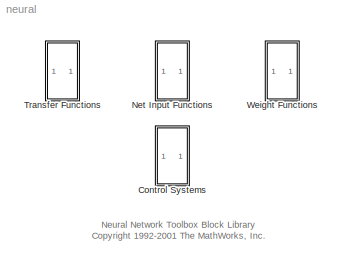
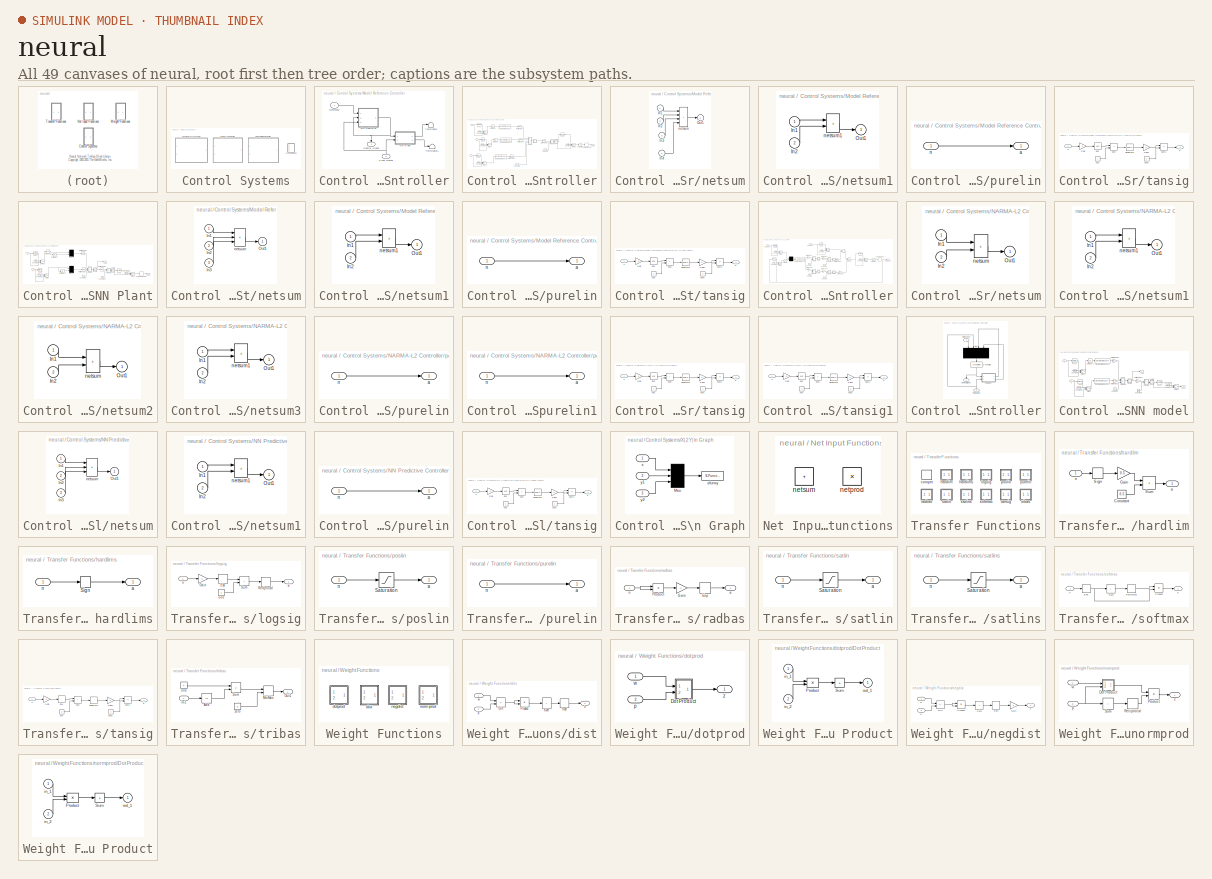
[diagram: thumbnail index - all 49 canvases of the model, root first then tree order]
MODEL neural
KIND library
BLOCK [SubSystem] Control Systems
  Ports = []
  RTWFcnNameOpts = Auto
  RTWFileNameOpts = Auto
  RTWSystemCode = Auto
  ShowPortLabels = on
  TreatAsAtomicUnit = off
BLOCK [SubSystem] Control Systems/Model Reference Controller
  MaskCallbackString = ||||||||||||||||||||||||||||||||||||||||||||||
  MaskDescription = Neural network model reference controller.  You first train a neural network model of the plant to be controlled.  Then train the controller so that the plant output will follow the output of a reference model.  Double-click the Model Reference Control block to begin the plant and controller training.
  MaskDisplay = plot([[xl NaN x2]*.9-.075 ], [[yl  NaN y2]*.9-.1 ]);\ntext(x1t,y1t,'Plant Output');\ntext(x2t,y2t,'Reference');\ntext(x3t,y3t,'Control');\ntext(x4t,y4t,'Signal');\ntext(x5t,y5t,'Neural');\ntext(x6t,y6t,'Network');\ntext(x7t,y7t,'Controller');
  MaskEnableString = on,on,on,on,on,on,on,on,on,on,on,on,on,on,on,on,on,on,on,on,on,on,on,on,on,on,on,on,on,on,on,on,on,on,on,on,on,on,on,on,on,on,on,on,on,on,on
  MaskHelp = eval('nnetbhelp([],''contro10.html'')');\n   \n
  MaskIconFrame = on
  MaskIconOpaque = on
  MaskIconRotate = none
  MaskIconUnits = normalized
  MaskInitialization = xl = [0   .53     .53     .92   .92   .53   .53  NaN ];\nyl = [.95 .95 1.05 1.05 .3   .3   .95 NaN  ];\nx2 = [0 .53    NaN .92 1.2  ];\ny2 = [.39 .39   NaN .65 .65  ];\nt=(0:24)/24*2*pi;\nxs = .07*cos(t)+.9;\nys = .07*sin(t)+.75;\n\nx1t=.03; y1t=.31;\nx2t=.03; y2t=.8;\nx3t=.77; y3t=.53;\nx4t=.77; y4t=.44;\nx5t=.45; y5t=.66;\nx6t=.45; y6t=.55;\nx7t=.45; y7t=.44;
  MaskPromptString = Nrc|Nic|Njc|IW_y|IW_u|IW_r|B1_c|B2_c|LW_c|retraining_c|max_i_int|min_i_int|max_r_int|min_r_int|Sample time|S1|Ni|Nj|sim_file|Training function Identification|Use_Validation|Use_Testing|Use_Inc_training|Use_previous_weights|max_i|min_i|max_r|min_r|sam_training|sam_training_c|epochs|epochs_c|minp|maxp|mint|maxt|Normalize|IW|LW1_2|LW2_1|B1|B2|S1c|Limit output|min_output|max_output|Ref_file
  MaskStyleString = edit,edit,edit,edit,edit,edit,edit,edit,edit,edit,edit,edit,edit,edit,edit,edit,edit,edit,edit,popup(trainbfg|trainbr |traincgb|traincgf|traincgp|traingd|traingdm|traingda|traingdx|trainlm |trainoss|trainrp |trainscg),edit,edit,edit,edit,edit,edit,edit,edit,edit,edit,edit,edit,edit,edit,edit,edit,edit,edit,edit,edit,edit,edit,edit,edit,edit,edit,edit
  MaskToolTipString = on,on,on,on,on,on,on,on,on,on,on,on,on,on,on,on,on,on,on,on,on,on,on,on,on,on,on,on,on,on,on,on,on,on,on,on,on,on,on,on,on,on,on,on,on,on,on
  MaskTunableValueString = on,on,on,on,on,on,on,on,on,on,on,on,on,on,on,on,on,on,on,on,on,on,on,on,on,on,on,on,on,on,on,on,on,on,on,on,on,on,on,on,on,on,on,on,on,on,on
  MaskType = NN Model Reference Control
  MaskValueString = |||||||||||||||||||trainlm |||||||||||||||||||||||||||
  MaskVarAliasString = ,,,,,,,,,,,,,,,,,,,,,,,,,,,,,,,,,,,,,,,,,,,,,,
  MaskVariables = Nrc=@1;Nic=@2;Njc=@3;IW_y=@4;IW_u=@5;IW_r=@6;B1_c=@7;B2_c=@8;LW_c=@9;retraining_c=@10;max_i_int=@11;min_i_int=@12;max_r_int=@13;min_r_int=@14;Ts=@15;S1=@16;Ni=@17;Nj=@18;sim_file=&19;trainfun=@20;Use_validation=@21;Use_Testing=@22;Use_Inc_training=@23;Use_previous_weights=@24;max_i=@25;min_i=@26;max_r=@27;min_r=@28;sam_training=@29;sam_training_c=@30;epochs=@31;epochs_c=@32;minp=@33;maxp=@34;mint=...<+136ch>
  MaskVisibilityString = on,on,on,on,on,on,on,on,on,on,on,on,on,on,on,on,on,on,on,on,on,on,on,on,on,on,on,on,on,on,on,on,on,on,on,on,on,on,on,on,on,on,on,on,on,on,on
  OpenFcn = nncontrolutil('nnmodref','',gcbh,gcb,'');
  Ports = [2, 1]
  RTWFcnNameOpts = Auto
  RTWFileNameOpts = Auto
  RTWSystemCode = Auto
  ShowPortLabels = on
  TreatAsAtomicUnit = off
BLOCK [Outport] Control Systems/Model Reference Controller/Control Signal
  InitialOutput = []
  OutputWhenDisabled = held
  Port = 1
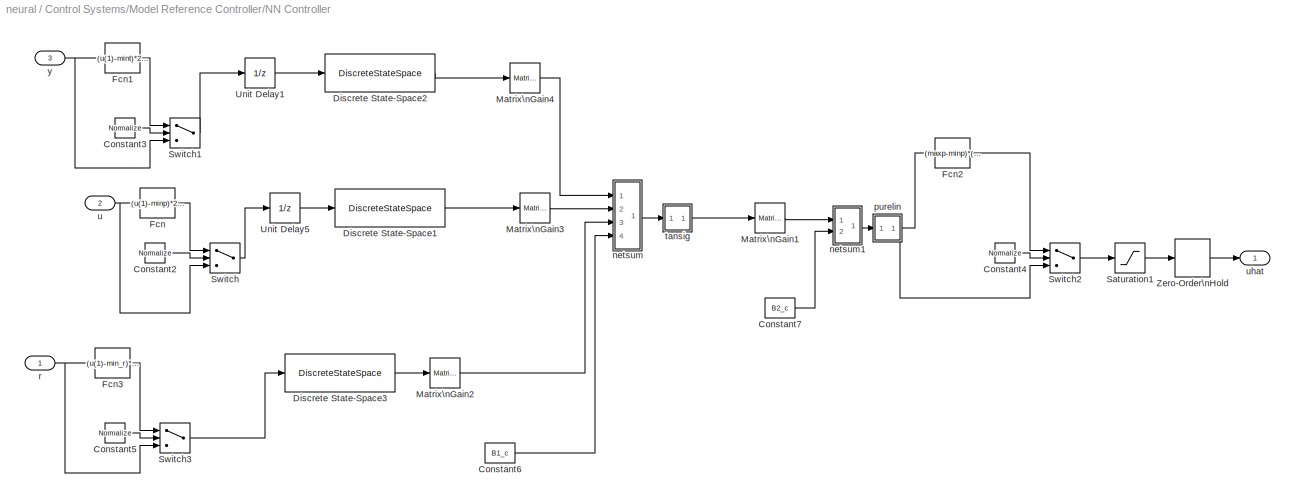
BLOCK [SubSystem] Control Systems/Model Reference Controller/NN Controller
  Ports = [3, 1]
  RTWFcnNameOpts = Auto
  RTWFileNameOpts = Auto
  RTWSystemCode = Auto
  ShowPortLabels = on
  TreatAsAtomicUnit = off
BLOCK [Constant] Control Systems/Model Reference Controller/NN Controller/Constant2
  Value = Normalize
  VectorParams1D = on
BLOCK [Constant] Control Systems/Model Reference Controller/NN Controller/Constant3
  Value = Normalize
  VectorParams1D = on
BLOCK [Constant] Control Systems/Model Reference Controller/NN Controller/Constant4
  Value = Normalize
  VectorParams1D = on
BLOCK [Constant] Control Systems/Model Reference Controller/NN Controller/Constant5
  Value = Normalize
  VectorParams1D = on
BLOCK [Constant] Control Systems/Model Reference Controller/NN Controller/Constant6
  Value = B1_c
  VectorParams1D = on
BLOCK [Constant] Control Systems/Model Reference Controller/NN Controller/Constant7
  Value = B2_c
  VectorParams1D = on
BLOCK [DiscreteStateSpace] Control Systems/Model Reference Controller/NN Controller/Discrete State-Space1
  A = [zeros(1,max([Nic-1 1]));eye(Nic-2,Nic-1)]
  B = eye(max([Nic-1 1]),1)
  C = [zeros(1,max([Nic-1 1]));eye(Nic-1,Nic-1)]
  D = eye(Nic,1)
  RTWStateStorageClass = Auto
  Realization = auto
  SampleTime = Ts
  X0 = 0
BLOCK [DiscreteStateSpace] Control Systems/Model Reference Controller/NN Controller/Discrete State-Space2
  A = [zeros(1,max([Njc-1 1]));eye(Njc-2,Njc-1)]
  B = eye(max([Njc-1 1]),1)
  C = [zeros(1,max([Njc-1 1]));eye(Njc-1,Njc-1)]
  D = eye(Njc,1)
  RTWStateStorageClass = Auto
  Realization = auto
  SampleTime = Ts
  X0 = 0
BLOCK [DiscreteStateSpace] Control Systems/Model Reference Controller/NN Controller/Discrete State-Space3
  A = [zeros(1,max([Nrc-1 1]));eye(Nrc-2,Nrc-1)]
  B = eye(max([Nrc-1 1]),1)
  C = [zeros(1,max([Nrc-1 1]));eye(Nrc-1,Nrc-1)]
  D = eye(Nrc,1)
  RTWStateStorageClass = Auto
  Realization = auto
  SampleTime = Ts
  X0 = 0
BLOCK [Fcn] Control Systems/Model Reference Controller/NN Controller/Fcn
  Expr = (u(1)-minp)*2/(maxp-minp) - 1
BLOCK [Fcn] Control Systems/Model Reference Controller/NN Controller/Fcn1
  Expr = (u(1)-mint)*2/(maxt-mint) - 1
BLOCK [Fcn] Control Systems/Model Reference Controller/NN Controller/Fcn2
  Expr = (maxp-minp)*(u(1)+1)/2 + minp
BLOCK [Fcn] Control Systems/Model Reference Controller/NN Controller/Fcn3
  Expr = (u(1)-min_r)*2/(max_r-min_r) - 1
BLOCK [Reference] Control Systems/Model Reference Controller/NN Controller/Matrix\nGain1  REF=simulink3/Math/Matrix\nGain
  K = LW_c
  Ports = [1, 1]
  SourceBlock = simulink3/Math/Matrix\nGain
  SourceType = Matrix Gain
BLOCK [Reference] Control Systems/Model Reference Controller/NN Controller/Matrix\nGain2  REF=simulink3/Math/Matrix\nGain
  K = IW_r
  Ports = [1, 1]
  SourceBlock = simulink3/Math/Matrix\nGain
  SourceType = Matrix Gain
BLOCK [Reference] Control Systems/Model Reference Controller/NN Controller/Matrix\nGain3  REF=simulink3/Math/Matrix\nGain
  K = IW_u
  Ports = [1, 1]
  SourceBlock = simulink3/Math/Matrix\nGain
  SourceType = Matrix Gain
BLOCK [Reference] Control Systems/Model Reference Controller/NN Controller/Matrix\nGain4  REF=simulink3/Math/Matrix\nGain
  K = IW_y
  Ports = [1, 1]
  SourceBlock = simulink3/Math/Matrix\nGain
  SourceType = Matrix Gain
BLOCK [Saturate] Control Systems/Model Reference Controller/NN Controller/Saturation1
  LinearizeAsGain = on
  LowerLimit = min_i
  UpperLimit = max_i
  ZeroCross = off
BLOCK [Switch] Control Systems/Model Reference Controller/NN Controller/Switch
  Threshold = 0.5
  ZeroCross = off
BLOCK [Switch] Control Systems/Model Reference Controller/NN Controller/Switch1
  Threshold = 0.5
  ZeroCross = off
BLOCK [Switch] Control Systems/Model Reference Controller/NN Controller/Switch2
  Threshold = 0.5
  ZeroCross = off
BLOCK [Switch] Control Systems/Model Reference Controller/NN Controller/Switch3
  Threshold = 0.5
  ZeroCross = off
BLOCK [UnitDelay] Control Systems/Model Reference Controller/NN Controller/Unit Delay1
  RTWStateStorageClass = Auto
  SampleTime = Ts
  X0 = 0
BLOCK [UnitDelay] Control Systems/Model Reference Controller/NN Controller/Unit Delay5
  RTWStateStorageClass = Auto
  SampleTime = Ts
  X0 = 0
BLOCK [ZeroOrderHold] Control Systems/Model Reference Controller/NN Controller/Zero-Order\nHold
  SampleTime = Ts
BLOCK [SubSystem] Control Systems/Model Reference Controller/NN Controller/netsum
  MaskDisplay = disp('+')
  MaskIconFrame = on
  MaskIconOpaque = on
  MaskIconRotate = none
  MaskIconUnits = autoscale
  Ports = [4, 1]
  RTWFcnNameOpts = Auto
  RTWFileNameOpts = Auto
  RTWSystemCode = Auto
  ShowPortLabels = on
  TreatAsAtomicUnit = off
BLOCK [Inport] Control Systems/Model Reference Controller/NN Controller/netsum/In1
  Interpolate = on
  LatchInput = off
  Port = 1
BLOCK [Inport] Control Systems/Model Reference Controller/NN Controller/netsum/In2
  Interpolate = on
  LatchInput = off
  Port = 2
BLOCK [Inport] Control Systems/Model Reference Controller/NN Controller/netsum/In3
  Interpolate = on
  LatchInput = off
  Port = 3
BLOCK [Inport] Control Systems/Model Reference Controller/NN Controller/netsum/In4
  Interpolate = on
  LatchInput = off
  Port = 4
BLOCK [Outport] Control Systems/Model Reference Controller/NN Controller/netsum/Out1
  InitialOutput = []
  OutputWhenDisabled = held
  Port = 1
BLOCK [Sum] Control Systems/Model Reference Controller/NN Controller/netsum/netsum
  IconShape = rectangular
  Inputs = 4
  Ports = [4, 1]
  SaturateOnIntegerOverflow = on
BLOCK [SubSystem] Control Systems/Model Reference Controller/NN Controller/netsum1
  MaskDisplay = disp('+')
  MaskIconFrame = on
  MaskIconOpaque = on
  MaskIconRotate = none
  MaskIconUnits = autoscale
  Ports = [2, 1]
  RTWFcnNameOpts = Auto
  RTWFileNameOpts = Auto
  RTWSystemCode = Auto
  ShowPortLabels = on
  TreatAsAtomicUnit = off
BLOCK [Inport] Control Systems/Model Reference Controller/NN Controller/netsum1/In1
  Interpolate = on
  LatchInput = off
  Port = 1
BLOCK [Inport] Control Systems/Model Reference Controller/NN Controller/netsum1/In2
  Interpolate = on
  LatchInput = off
  Port = 2
BLOCK [Outport] Control Systems/Model Reference Controller/NN Controller/netsum1/Out1
  InitialOutput = []
  OutputWhenDisabled = held
  Port = 1
BLOCK [Sum] Control Systems/Model Reference Controller/NN Controller/netsum1/netsum1
  IconShape = rectangular
  Inputs = 2
  Ports = [2, 1]
  SaturateOnIntegerOverflow = on
BLOCK [SubSystem] Control Systems/Model Reference Controller/NN Controller/purelin
  MaskDisplay = plot([-1 1],[0 0],[-1 1],[-1 1])
  MaskIconFrame = on
  MaskIconOpaque = on
  MaskIconRotate = none
  MaskIconUnits = autoscale
  Ports = [1, 1]
  RTWFcnNameOpts = Auto
  RTWFileNameOpts = Auto
  RTWSystemCode = Auto
  ShowPortLabels = on
  TreatAsAtomicUnit = off
BLOCK [Outport] Control Systems/Model Reference Controller/NN Controller/purelin/a
  InitialOutput = []
  OutputWhenDisabled = held
  Port = 1
BLOCK [Inport] Control Systems/Model Reference Controller/NN Controller/purelin/n
  Interpolate = on
  LatchInput = off
  Port = 1
BLOCK [Inport] Control Systems/Model Reference Controller/NN Controller/r
  Interpolate = on
  LatchInput = off
  Port = 1
BLOCK [SubSystem] Control Systems/Model Reference Controller/NN Controller/tansig
  MaskDisplay = plot([-1 1],[0 0],[-1 -.9 -.8 -.7 -.6 -.5 -.4 -.3 -.2 -.1 0 .1 .2 .3 .4 .5 .6 .7 .8 .9 1],2./(1+exp(-8*[-1 -.9 -.8 -.7 -.6 -.5 -.4 -.3 -.2 -.1 0 .1 .2 .3 .4 .5 .6 .7 .8 .9 1]))-1)
  MaskIconFrame = on
  MaskIconOpaque = on
  MaskIconRotate = none
  MaskIconUnits = autoscale
  Ports = [1, 1]
  RTWFcnNameOpts = Auto
  RTWFileNameOpts = Auto
  RTWSystemCode = Auto
  ShowPortLabels = on
  TreatAsAtomicUnit = off
BLOCK [Math] Control Systems/Model Reference Controller/NN Controller/tansig/Exp
  MaskIconFrame = on
  MaskIconOpaque = on
  MaskIconRotate = none
  MaskIconUnits = autoscale
  Operator = exp
  OutputSignalType = auto
  Ports = [1, 1]
BLOCK [Gain] Control Systems/Model Reference Controller/NN Controller/tansig/Gain
  Gain = -2
  Multiplication = Element-wise(K.*u)
  SaturateOnIntegerOverflow = on
BLOCK [Gain] Control Systems/Model Reference Controller/NN Controller/tansig/Gain1
  Gain = 2
  Multiplication = Element-wise(K.*u)
  SaturateOnIntegerOverflow = on
BLOCK [Math] Control Systems/Model Reference Controller/NN Controller/tansig/Reciprocal
  MaskIconFrame = on
  MaskIconOpaque = on
  MaskIconRotate = none
  MaskIconUnits = autoscale
  Operator = reciprocal
  OutputSignalType = auto
  Ports = [1, 1]
BLOCK [Sum] Control Systems/Model Reference Controller/NN Controller/tansig/Sum
  IconShape = rectangular
  Inputs = ++
  Ports = [2, 1]
  SaturateOnIntegerOverflow = on
BLOCK [Sum] Control Systems/Model Reference Controller/NN Controller/tansig/Sum1
  IconShape = rectangular
  Inputs = +-
  Ports = [2, 1]
  SaturateOnIntegerOverflow = on
BLOCK [Outport] Control Systems/Model Reference Controller/NN Controller/tansig/a
  InitialOutput = []
  OutputWhenDisabled = held
  Port = 1
BLOCK [Inport] Control Systems/Model Reference Controller/NN Controller/tansig/n
  Interpolate = on
  LatchInput = off
  Port = 1
BLOCK [Constant] Control Systems/Model Reference Controller/NN Controller/tansig/one
  Value = 1
  VectorParams1D = on
BLOCK [Constant] Control Systems/Model Reference Controller/NN Controller/tansig/one1
  Value = 1
  VectorParams1D = on
BLOCK [Inport] Control Systems/Model Reference Controller/NN Controller/u
  Interpolate = on
  LatchInput = off
  Port = 2
BLOCK [Outport] Control Systems/Model Reference Controller/NN Controller/uhat
  InitialOutput = []
  OutputWhenDisabled = held
  Port = 1
BLOCK [Inport] Control Systems/Model Reference Controller/NN Controller/y
  Interpolate = on
  LatchInput = off
  Port = 3
BLOCK [SubSystem] Control Systems/Model Reference Controller/NN Plant
  Ports = [2, 2]
  RTWFcnNameOpts = Auto
  RTWFileNameOpts = Auto
  RTWSystemCode = Auto
  ShowPortLabels = on
  TreatAsAtomicUnit = off
BLOCK [Constant] Control Systems/Model Reference Controller/NN Plant/Constant
  Value = B1
  VectorParams1D = on
BLOCK [Constant] Control Systems/Model Reference Controller/NN Plant/Constant1
  Value = B2
  VectorParams1D = on
BLOCK [Constant] Control Systems/Model Reference Controller/NN Plant/Constant2
  Value = Normalize
  VectorParams1D = on
BLOCK [Constant] Control Systems/Model Reference Controller/NN Plant/Constant3
  Value = Normalize
  VectorParams1D = on
BLOCK [Constant] Control Systems/Model Reference Controller/NN Plant/Constant4
  Value = Normalize
  VectorParams1D = on
BLOCK [Fcn] Control Systems/Model Reference Controller/NN Plant/Fcn
  Expr = (u(1)-minp)*2/(maxp-minp) - 1
BLOCK [Fcn] Control Systems/Model Reference Controller/NN Plant/Fcn1
  Expr = (u(1)-mint)*2/(maxt-mint) - 1
BLOCK [Fcn] Control Systems/Model Reference Controller/NN Plant/Fcn2
  Expr = (maxt-mint)*(u(1)+1)/2 + mint
BLOCK [Reference] Control Systems/Model Reference Controller/NN Plant/Matrix\nGain  REF=simulink3/Math/Matrix\nGain
  K = IW
  Ports = [1, 1]
  SourceBlock = simulink3/Math/Matrix\nGain
  SourceType = Matrix Gain
BLOCK [Reference] Control Systems/Model Reference Controller/NN Plant/Matrix\nGain1  REF=simulink3/Math/Matrix\nGain
  K = LW1_2
  Ports = [1, 1]
  SourceBlock = simulink3/Math/Matrix\nGain
  SourceType = Matrix Gain
BLOCK [Reference] Control Systems/Model Reference Controller/NN Plant/Matrix\nGain2  REF=simulink3/Math/Matrix\nGain
  K = LW2_1
  Ports = [1, 1]
  SourceBlock = simulink3/Math/Matrix\nGain
  SourceType = Matrix Gain
BLOCK [Mux] Control Systems/Model Reference Controller/NN Plant/Mux1
  DisplayOption = signals
  Inputs = 2
  Ports = [2, 1]
BLOCK [Mux] Control Systems/Model Reference Controller/NN Plant/Mux2
  DisplayOption = signals
  Inputs = 2
  Ports = [2, 1]
BLOCK [Switch] Control Systems/Model Reference Controller/NN Plant/Switch
  Threshold = 0.5
  ZeroCross = off
BLOCK [Switch] Control Systems/Model Reference Controller/NN Plant/Switch1
  Threshold = 0.5
  ZeroCross = off
BLOCK [Switch] Control Systems/Model Reference Controller/NN Plant/Switch2
  Threshold = 0.5
  ZeroCross = off
BLOCK [UnitDelay] Control Systems/Model Reference Controller/NN Plant/Unit Delay1
  RTWStateStorageClass = Auto
  SampleTime = Ts
  X0 = 0
BLOCK [UnitDelay] Control Systems/Model Reference Controller/NN Plant/Unit Delay2
  RTWStateStorageClass = Auto
  SampleTime = Ts
  X0 = 0
BLOCK [UnitDelay] Control Systems/Model Reference Controller/NN Plant/Unit Delay4
  RTWStateStorageClass = Auto
  SampleTime = Ts
  X0 = 0
BLOCK [ZeroOrderHold] Control Systems/Model Reference Controller/NN Plant/Zero-Order\nHold
  SampleTime = Ts
BLOCK [SubSystem] Control Systems/Model Reference Controller/NN Plant/netsum
  MaskDisplay = disp('+')
  MaskIconFrame = on
  MaskIconOpaque = on
  MaskIconRotate = none
  MaskIconUnits = autoscale
  Ports = [3, 1]
  RTWFcnNameOpts = Auto
  RTWFileNameOpts = Auto
  RTWSystemCode = Auto
  ShowPortLabels = on
  TreatAsAtomicUnit = off
BLOCK [Inport] Control Systems/Model Reference Controller/NN Plant/netsum/In1
  Interpolate = on
  LatchInput = off
  Port = 1
BLOCK [Inport] Control Systems/Model Reference Controller/NN Plant/netsum/In2
  Interpolate = on
  LatchInput = off
  Port = 2
BLOCK [Inport] Control Systems/Model Reference Controller/NN Plant/netsum/In3
  Interpolate = on
  LatchInput = off
  Port = 3
BLOCK [Outport] Control Systems/Model Reference Controller/NN Plant/netsum/Out1
  InitialOutput = []
  OutputWhenDisabled = held
  Port = 1
BLOCK [Sum] Control Systems/Model Reference Controller/NN Plant/netsum/netsum
  IconShape = rectangular
  Inputs = 3
  Ports = [3, 1]
  SaturateOnIntegerOverflow = on
BLOCK [SubSystem] Control Systems/Model Reference Controller/NN Plant/netsum1
  MaskDisplay = disp('+')
  MaskIconFrame = on
  MaskIconOpaque = on
  MaskIconRotate = none
  MaskIconUnits = autoscale
  Ports = [2, 1]
  RTWFcnNameOpts = Auto
  RTWFileNameOpts = Auto
  RTWSystemCode = Auto
  ShowPortLabels = on
  TreatAsAtomicUnit = off
BLOCK [Inport] Control Systems/Model Reference Controller/NN Plant/netsum1/In1
  Interpolate = on
  LatchInput = off
  Port = 1
BLOCK [Inport] Control Systems/Model Reference Controller/NN Plant/netsum1/In2
  Interpolate = on
  LatchInput = off
  Port = 2
BLOCK [Outport] Control Systems/Model Reference Controller/NN Plant/netsum1/Out1
  InitialOutput = []
  OutputWhenDisabled = held
  Port = 1
BLOCK [Sum] Control Systems/Model Reference Controller/NN Plant/netsum1/netsum1
  IconShape = rectangular
  Inputs = 2
  Ports = [2, 1]
  SaturateOnIntegerOverflow = on
BLOCK [SubSystem] Control Systems/Model Reference Controller/NN Plant/purelin
  MaskDisplay = plot([-1 1],[0 0],[-1 1],[-1 1])
  MaskIconFrame = on
  MaskIconOpaque = on
  MaskIconRotate = none
  MaskIconUnits = autoscale
  Ports = [1, 1]
  RTWFcnNameOpts = Auto
  RTWFileNameOpts = Auto
  RTWSystemCode = Auto
  ShowPortLabels = on
  TreatAsAtomicUnit = off
BLOCK [Outport] Control Systems/Model Reference Controller/NN Plant/purelin/a
  InitialOutput = []
  OutputWhenDisabled = held
  Port = 1
BLOCK [Inport] Control Systems/Model Reference Controller/NN Plant/purelin/n
  Interpolate = on
  LatchInput = off
  Port = 1
BLOCK [SubSystem] Control Systems/Model Reference Controller/NN Plant/tansig
  MaskDisplay = plot([-1 1],[0 0],[-1 -.9 -.8 -.7 -.6 -.5 -.4 -.3 -.2 -.1 0 .1 .2 .3 .4 .5 .6 .7 .8 .9 1],2./(1+exp(-8*[-1 -.9 -.8 -.7 -.6 -.5 -.4 -.3 -.2 -.1 0 .1 .2 .3 .4 .5 .6 .7 .8 .9 1]))-1)
  MaskIconFrame = on
  MaskIconOpaque = on
  MaskIconRotate = none
  MaskIconUnits = autoscale
  Ports = [1, 1]
  RTWFcnNameOpts = Auto
  RTWFileNameOpts = Auto
  RTWSystemCode = Auto
  ShowPortLabels = on
  TreatAsAtomicUnit = off
BLOCK [Math] Control Systems/Model Reference Controller/NN Plant/tansig/Exp
  MaskIconFrame = on
  MaskIconOpaque = on
  MaskIconRotate = none
  MaskIconUnits = autoscale
  Operator = exp
  OutputSignalType = auto
  Ports = [1, 1]
BLOCK [Gain] Control Systems/Model Reference Controller/NN Plant/tansig/Gain
  Gain = -2
  Multiplication = Element-wise(K.*u)
  SaturateOnIntegerOverflow = on
BLOCK [Gain] Control Systems/Model Reference Controller/NN Plant/tansig/Gain1
  Gain = 2
  Multiplication = Element-wise(K.*u)
  SaturateOnIntegerOverflow = on
BLOCK [Math] Control Systems/Model Reference Controller/NN Plant/tansig/Reciprocal
  MaskIconFrame = on
  MaskIconOpaque = on
  MaskIconRotate = none
  MaskIconUnits = autoscale
  Operator = reciprocal
  OutputSignalType = auto
  Ports = [1, 1]
BLOCK [Sum] Control Systems/Model Reference Controller/NN Plant/tansig/Sum
  IconShape = rectangular
  Inputs = ++
  Ports = [2, 1]
  SaturateOnIntegerOverflow = on
BLOCK [Sum] Control Systems/Model Reference Controller/NN Plant/tansig/Sum1
  IconShape = rectangular
  Inputs = +-
  Ports = [2, 1]
  SaturateOnIntegerOverflow = on
BLOCK [Outport] Control Systems/Model Reference Controller/NN Plant/tansig/a
  InitialOutput = []
  OutputWhenDisabled = held
  Port = 1
BLOCK [Inport] Control Systems/Model Reference Controller/NN Plant/tansig/n
  Interpolate = on
  LatchInput = off
  Port = 1
BLOCK [Constant] Control Systems/Model Reference Controller/NN Plant/tansig/one
  Value = 1
  VectorParams1D = on
BLOCK [Constant] Control Systems/Model Reference Controller/NN Plant/tansig/one1
  Value = 1
  VectorParams1D = on
BLOCK [Inport] Control Systems/Model Reference Controller/NN Plant/u
  Interpolate = on
  LatchInput = off
  Port = 1
BLOCK [Inport] Control Systems/Model Reference Controller/NN Plant/y
  Interpolate = on
  LatchInput = off
  Port = 2
BLOCK [Outport] Control Systems/Model Reference Controller/NN Plant/yhat
  InitialOutput = []
  OutputWhenDisabled = held
  Port = 1
BLOCK [Outport] Control Systems/Model Reference Controller/NN Plant/yhat1
  InitialOutput = []
  OutputWhenDisabled = held
  Port = 2
BLOCK [Inport] Control Systems/Model Reference Controller/Plant Output
  Interpolate = on
  LatchInput = off
  Port = 2
BLOCK [Inport] Control Systems/Model Reference Controller/Reference
  Interpolate = on
  LatchInput = off
  Port = 1
BLOCK [Terminator] Control Systems/Model Reference Controller/Terminator
BLOCK [Terminator] Control Systems/Model Reference Controller/Terminator1
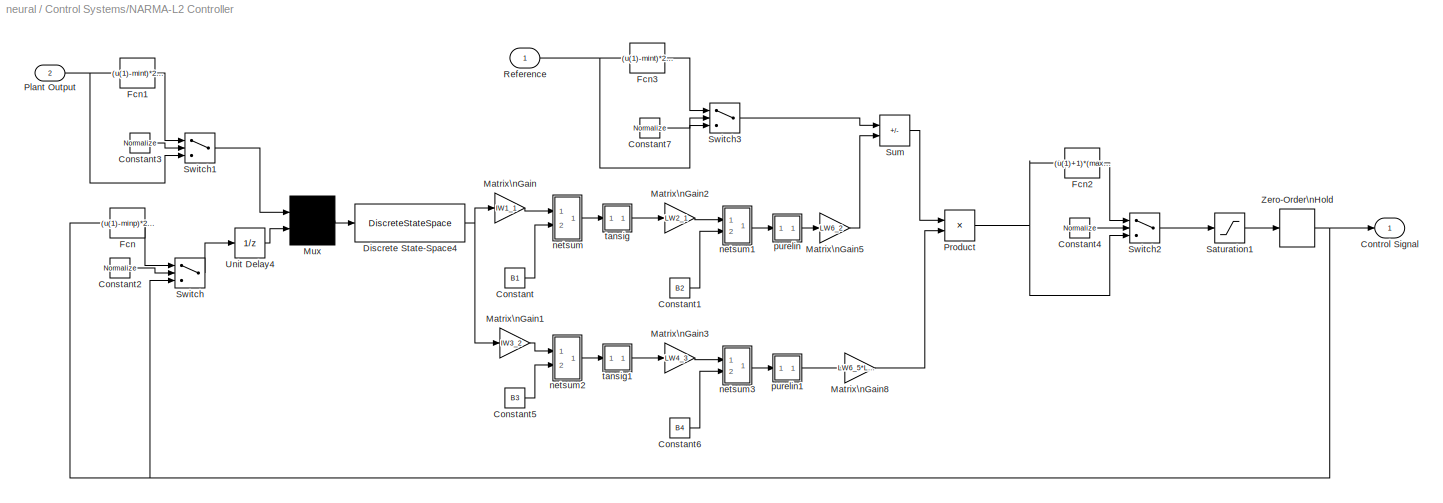
BLOCK [SubSystem] Control Systems/NARMA-L2 Controller
  MaskCallbackString = ||||||||||||||||||||||||||||||||||
  MaskDescription = NARMA-L2 Controller. You first train a neural network model of the plant to be controlled.  The controller is a rearrangement of the trained plant model.  Double-click the NARMA-L2 Controller block to begin the plant training.
  MaskDisplay = plot([[xl NaN x2]*.9-.075 ], [[yl  NaN y2]*.9-.1 ]);\nplot([[x3 NaN xs1 NaN xs2]*.9-.075 ], [[y3 NaN ys1 NaN ys2]*.9-.1 ]);\nplot([x4 NaN x5]*.9-.075,[y4 NaN y5]*.9-.1);\nplot([x6 NaN ]*.9-.075,[y6 NaN ]*.9-.1);\ntext(x1t,y1t,'Plant');\ntext(x8t,y8t,'Output');\ntext(x2t,y2t,'Reference');\ntext(x3t,y3t,'Control');\ntext(x4t,y4t,'Signal');\ntext(x5t,y5t,'f');\ntext(x6t,y6t,'g');\n
  MaskEnableString = on,on,on,on,on,on,on,on,on,on,on,on,on,on,on,on,on,on,on,on,on,on,on,on,on,on,on,on,on,on,on,on,on,on,on
  MaskHelp = eval('nnetbhelp([],''contro6a.html'')');\n   \n
  MaskIconFrame = on
  MaskIconOpaque = on
  MaskIconRotate = none
  MaskIconUnits = normalized
  MaskInitialization = xl = [0    .4   NaN  .33  .55   .55  .33  .33  NaN .80  .92 .92];\nyl = [.95 .95 NaN  .75  .75   .55  .55  .75  NaN  .95 .95 .65];\nx2 = [0    .43 NaN .45 .45    NaN .92 1.2 NaN .63 .85 .85 .63 .63 ];\ny2 = [.39 .39 NaN  .41 .55   NaN .65 .65 NaN .75 .75  .55  .55  .75];\nx3 = [.45 .45 NaN .42 .45 .48  NaN .33 .4 .33];\ny3 = [.75 .90 NaN .83 .90 .83  NaN  .98 .95 .92];\nx4 = [.75 .75 NaN .72 .75 ....<+524ch>
  MaskPromptString = Normalize|IW1_1|IW3_2|IW5_3|LW2_1|LW4_3|LW5_4|LW6_5|LW6_2|B1|B2|B3|B4|Limit_output|min_output|max_output|Use_Previous_Weights|Sample time|S1|Ni|Nj|sim_file|Training function|Use_Validation|Use_Testing|max_i|min_i|max_i_int|min_i_int|sam_training|epochs|minp|maxp|mint|maxt
  MaskStyleString = edit,edit,edit,edit,edit,edit,edit,edit,edit,edit,edit,edit,edit,edit,edit,edit,edit,edit,edit,edit,edit,edit,popup(trainbfg|trainbr |traincgb|traincgf|traincgp|traingd|traingdm|traingda|traingdx|trainlm |trainoss|trainrp |trainscg),edit,edit,edit,edit,edit,edit,edit,edit,edit,edit,edit,edit
  MaskToolTipString = on,on,on,on,on,on,on,on,on,on,on,on,on,on,on,on,on,on,on,on,on,on,on,on,on,on,on,on,on,on,on,on,on,on,on
  MaskTunableValueString = on,on,on,on,on,on,on,on,on,on,on,on,on,on,on,on,on,on,on,on,on,on,on,on,on,on,on,on,on,on,on,on,on,on,on
  MaskType = NARMA-L2 Controller
  MaskValueString = ||||||||||||||||||||||trainlm ||||||||||||
  MaskVarAliasString = ,,,,,,,,,,,,,,,,,,,,,,,,,,,,,,,,,,
  MaskVariables = Normalize=@1;IW1_1=@2;IW3_2=@3;IW5_3=@4;LW2_1=@5;LW4_3=@6;LW5_4=@7;LW6_5=@8;LW6_2=@9;B1=@10;B2=@11;B3=@12;B4=@13;Limit_output=@14;min_output=@15;max_output=@16;Use_Previous_Weights=@17;Ts=@18;S1=@19;Ni=@20;Nj=@21;sim_file=&22;trainfun=@23;Use_validation=@24;Use_Testing=@25;max_i=@26;min_i=@27;max_i_int=@28;min_i_int=@29;sam_training=@30;epochs=@31;minp=@32;maxp=@33;mint=@34;maxt=@35;
  MaskVisibilityString = on,on,on,on,on,on,on,on,on,on,on,on,on,on,on,on,on,on,on,on,on,on,on,on,on,on,on,on,on,on,on,on,on,on,on
  OpenFcn = nncontrolutil('nnident','',gcbh,gcb,'narma_l2');
  Ports = [2, 1]
  RTWFcnNameOpts = Auto
  RTWFileNameOpts = Auto
  RTWSystemCode = Auto
  ShowPortLabels = on
  TreatAsAtomicUnit = off
BLOCK [Constant] Control Systems/NARMA-L2 Controller/Constant
  Value = B1
  VectorParams1D = on
BLOCK [Constant] Control Systems/NARMA-L2 Controller/Constant1
  Value = B2
  VectorParams1D = on
BLOCK [Constant] Control Systems/NARMA-L2 Controller/Constant2
  Value = Normalize
  VectorParams1D = on
BLOCK [Constant] Control Systems/NARMA-L2 Controller/Constant3
  Value = Normalize
  VectorParams1D = on
BLOCK [Constant] Control Systems/NARMA-L2 Controller/Constant4
  Value = Normalize
  VectorParams1D = on
BLOCK [Constant] Control Systems/NARMA-L2 Controller/Constant5
  Value = B3
  VectorParams1D = on
BLOCK [Constant] Control Systems/NARMA-L2 Controller/Constant6
  Value = B4
  VectorParams1D = on
BLOCK [Constant] Control Systems/NARMA-L2 Controller/Constant7
  Value = Normalize
  VectorParams1D = on
BLOCK [Outport] Control Systems/NARMA-L2 Controller/Control Signal
  InitialOutput = []
  OutputWhenDisabled = held
  Port = 1
BLOCK [DiscreteStateSpace] Control Systems/NARMA-L2 Controller/Discrete State-Space4
  A = blkdiag([zeros(1,Nj-1);eye(Nj-2,Nj-2) zeros(Nj-2,1)],[zeros(1,Ni-1);eye(Ni-2,Ni-2) zeros(Ni-2,1)])
  B = blkdiag(eye(Nj-1,1),eye(Ni-1,1))
  C = blkdiag([zeros(1,Nj-1);eye(Nj-1,Nj-1)],[zeros(eye(double(Ni>1)),Ni-1);eye(Ni-2,Ni-1)])
  D = blkdiag([1;zeros(Nj-1,1)],[eye(double(Ni>1));zeros(Ni-2,1)])
  RTWStateStorageClass = Auto
  Realization = auto
  SampleTime = Ts
  X0 = 0
BLOCK [Fcn] Control Systems/NARMA-L2 Controller/Fcn
  Expr = (u(1)-minp)*2/(maxp-minp) - 1
BLOCK [Fcn] Control Systems/NARMA-L2 Controller/Fcn1
  Expr = (u(1)-mint)*2/(maxt-mint) - 1
BLOCK [Fcn] Control Systems/NARMA-L2 Controller/Fcn2
  Expr = (u(1)+1)*(maxp-minp)/2 + minp
BLOCK [Fcn] Control Systems/NARMA-L2 Controller/Fcn3
  Expr = (u(1)-mint)*2/(maxt-mint) - 1
BLOCK [Gain] Control Systems/NARMA-L2 Controller/Matrix\nGain
  Gain = IW1_1
  Multiplication = Matrix(K*u)
  SaturateOnIntegerOverflow = on
BLOCK [Gain] Control Systems/NARMA-L2 Controller/Matrix\nGain1
  Gain = IW3_2
  Multiplication = Matrix(K*u)
  SaturateOnIntegerOverflow = on
BLOCK [Gain] Control Systems/NARMA-L2 Controller/Matrix\nGain2
  Gain = LW2_1
  Multiplication = Matrix(K*u)
  SaturateOnIntegerOverflow = on
BLOCK [Gain] Control Systems/NARMA-L2 Controller/Matrix\nGain3
  Gain = LW4_3
  Multiplication = Matrix(K*u)
  SaturateOnIntegerOverflow = on
BLOCK [Gain] Control Systems/NARMA-L2 Controller/Matrix\nGain5
  Gain = LW6_2
  Multiplication = Matrix(K*u)
  SaturateOnIntegerOverflow = on
BLOCK [Gain] Control Systems/NARMA-L2 Controller/Matrix\nGain8
  Gain = LW6_5*LW5_4*IW5_3
  Multiplication = Matrix(K*u)
  SaturateOnIntegerOverflow = on
BLOCK [Mux] Control Systems/NARMA-L2 Controller/Mux
  DisplayOption = signals
  Inputs = 2
  Ports = [2, 1]
BLOCK [Inport] Control Systems/NARMA-L2 Controller/Plant Output
  Interpolate = on
  LatchInput = off
  Port = 2
BLOCK [Product] Control Systems/NARMA-L2 Controller/Product
  Inputs = */
  Multiplication = Element-wise(.*)
  Ports = [2, 1]
  SaturateOnIntegerOverflow = on
BLOCK [Inport] Control Systems/NARMA-L2 Controller/Reference
  Interpolate = on
  LatchInput = off
  Port = 1
BLOCK [Saturate] Control Systems/NARMA-L2 Controller/Saturation1
  LinearizeAsGain = on
  LowerLimit = min_i
  UpperLimit = max_i
  ZeroCross = off
BLOCK [Sum] Control Systems/NARMA-L2 Controller/Sum
  IconShape = rectangular
  Inputs = +-
  Ports = [2, 1]
  SaturateOnIntegerOverflow = on
BLOCK [Switch] Control Systems/NARMA-L2 Controller/Switch
  Threshold = 0.5
  ZeroCross = off
BLOCK [Switch] Control Systems/NARMA-L2 Controller/Switch1
  Threshold = 0.5
  ZeroCross = off
BLOCK [Switch] Control Systems/NARMA-L2 Controller/Switch2
  Threshold = 0.5
  ZeroCross = off
BLOCK [Switch] Control Systems/NARMA-L2 Controller/Switch3
  Threshold = 0.5
  ZeroCross = off
BLOCK [UnitDelay] Control Systems/NARMA-L2 Controller/Unit Delay4
  RTWStateStorageClass = Auto
  SampleTime = Ts
  X0 = 0
BLOCK [ZeroOrderHold] Control Systems/NARMA-L2 Controller/Zero-Order\nHold
  SampleTime = Ts
BLOCK [SubSystem] Control Systems/NARMA-L2 Controller/netsum
  MaskDisplay = disp('+')
  MaskIconFrame = on
  MaskIconOpaque = on
  MaskIconRotate = none
  MaskIconUnits = autoscale
  Ports = [2, 1]
  RTWFcnNameOpts = Auto
  RTWFileNameOpts = Auto
  RTWSystemCode = Auto
  ShowPortLabels = on
  TreatAsAtomicUnit = off
BLOCK [Inport] Control Systems/NARMA-L2 Controller/netsum/In1
  Interpolate = on
  LatchInput = off
  Port = 1
BLOCK [Inport] Control Systems/NARMA-L2 Controller/netsum/In2
  Interpolate = on
  LatchInput = off
  Port = 2
BLOCK [Outport] Control Systems/NARMA-L2 Controller/netsum/Out1
  InitialOutput = []
  OutputWhenDisabled = held
  Port = 1
BLOCK [Sum] Control Systems/NARMA-L2 Controller/netsum/netsum
  IconShape = rectangular
  Inputs = 2
  Ports = [2, 1]
  SaturateOnIntegerOverflow = on
BLOCK [SubSystem] Control Systems/NARMA-L2 Controller/netsum1
  MaskDisplay = disp('+')
  MaskIconFrame = on
  MaskIconOpaque = on
  MaskIconRotate = none
  MaskIconUnits = autoscale
  Ports = [2, 1]
  RTWFcnNameOpts = Auto
  RTWFileNameOpts = Auto
  RTWSystemCode = Auto
  ShowPortLabels = on
  TreatAsAtomicUnit = off
BLOCK [Inport] Control Systems/NARMA-L2 Controller/netsum1/In1
  Interpolate = on
  LatchInput = off
  Port = 1
BLOCK [Inport] Control Systems/NARMA-L2 Controller/netsum1/In2
  Interpolate = on
  LatchInput = off
  Port = 2
BLOCK [Outport] Control Systems/NARMA-L2 Controller/netsum1/Out1
  InitialOutput = []
  OutputWhenDisabled = held
  Port = 1
BLOCK [Sum] Control Systems/NARMA-L2 Controller/netsum1/netsum1
  IconShape = rectangular
  Inputs = 2
  Ports = [2, 1]
  SaturateOnIntegerOverflow = on
BLOCK [SubSystem] Control Systems/NARMA-L2 Controller/netsum2
  MaskDisplay = disp('+')
  MaskIconFrame = on
  MaskIconOpaque = on
  MaskIconRotate = none
  MaskIconUnits = autoscale
  Ports = [2, 1]
  RTWFcnNameOpts = Auto
  RTWFileNameOpts = Auto
  RTWSystemCode = Auto
  ShowPortLabels = on
  TreatAsAtomicUnit = off
BLOCK [Inport] Control Systems/NARMA-L2 Controller/netsum2/In1
  Interpolate = on
  LatchInput = off
  Port = 1
BLOCK [Inport] Control Systems/NARMA-L2 Controller/netsum2/In2
  Interpolate = on
  LatchInput = off
  Port = 2
BLOCK [Outport] Control Systems/NARMA-L2 Controller/netsum2/Out1
  InitialOutput = []
  OutputWhenDisabled = held
  Port = 1
BLOCK [Sum] Control Systems/NARMA-L2 Controller/netsum2/netsum
  IconShape = rectangular
  Inputs = 2
  Ports = [2, 1]
  SaturateOnIntegerOverflow = on
BLOCK [SubSystem] Control Systems/NARMA-L2 Controller/netsum3
  MaskDisplay = disp('+')
  MaskIconFrame = on
  MaskIconOpaque = on
  MaskIconRotate = none
  MaskIconUnits = autoscale
  Ports = [2, 1]
  RTWFcnNameOpts = Auto
  RTWFileNameOpts = Auto
  RTWSystemCode = Auto
  ShowPortLabels = on
  TreatAsAtomicUnit = off
BLOCK [Inport] Control Systems/NARMA-L2 Controller/netsum3/In1
  Interpolate = on
  LatchInput = off
  Port = 1
BLOCK [Inport] Control Systems/NARMA-L2 Controller/netsum3/In2
  Interpolate = on
  LatchInput = off
  Port = 2
BLOCK [Outport] Control Systems/NARMA-L2 Controller/netsum3/Out1
  InitialOutput = []
  OutputWhenDisabled = held
  Port = 1
BLOCK [Sum] Control Systems/NARMA-L2 Controller/netsum3/netsum1
  IconShape = rectangular
  Inputs = 2
  Ports = [2, 1]
  SaturateOnIntegerOverflow = on
BLOCK [SubSystem] Control Systems/NARMA-L2 Controller/purelin
  MaskDisplay = plot([-1 1],[0 0],[-1 1],[-1 1])
  MaskIconFrame = on
  MaskIconOpaque = on
  MaskIconRotate = none
  MaskIconUnits = autoscale
  Ports = [1, 1]
  RTWFcnNameOpts = Auto
  RTWFileNameOpts = Auto
  RTWSystemCode = Auto
  ShowPortLabels = on
  TreatAsAtomicUnit = off
BLOCK [Outport] Control Systems/NARMA-L2 Controller/purelin/a
  InitialOutput = []
  OutputWhenDisabled = held
  Port = 1
BLOCK [Inport] Control Systems/NARMA-L2 Controller/purelin/n
  Interpolate = on
  LatchInput = off
  Port = 1
BLOCK [SubSystem] Control Systems/NARMA-L2 Controller/purelin1
  MaskDisplay = plot([-1 1],[0 0],[-1 1],[-1 1])
  MaskIconFrame = on
  MaskIconOpaque = on
  MaskIconRotate = none
  MaskIconUnits = autoscale
  Ports = [1, 1]
  RTWFcnNameOpts = Auto
  RTWFileNameOpts = Auto
  RTWSystemCode = Auto
  ShowPortLabels = on
  TreatAsAtomicUnit = off
BLOCK [Outport] Control Systems/NARMA-L2 Controller/purelin1/a
  InitialOutput = []
  OutputWhenDisabled = held
  Port = 1
BLOCK [Inport] Control Systems/NARMA-L2 Controller/purelin1/n
  Interpolate = on
  LatchInput = off
  Port = 1
BLOCK [SubSystem] Control Systems/NARMA-L2 Controller/tansig
  MaskDisplay = plot([-1 1],[0 0],[-1 -.9 -.8 -.7 -.6 -.5 -.4 -.3 -.2 -.1 0 .1 .2 .3 .4 .5 .6 .7 .8 .9 1],2./(1+exp(-8*[-1 -.9 -.8 -.7 -.6 -.5 -.4 -.3 -.2 -.1 0 .1 .2 .3 .4 .5 .6 .7 .8 .9 1]))-1)
  MaskIconFrame = on
  MaskIconOpaque = on
  MaskIconRotate = none
  MaskIconUnits = autoscale
  Ports = [1, 1]
  RTWFcnNameOpts = Auto
  RTWFileNameOpts = Auto
  RTWSystemCode = Auto
  ShowPortLabels = on
  TreatAsAtomicUnit = off
BLOCK [Math] Control Systems/NARMA-L2 Controller/tansig/Exp
  MaskIconFrame = on
  MaskIconOpaque = on
  MaskIconRotate = none
  MaskIconUnits = autoscale
  Operator = exp
  OutputSignalType = auto
  Ports = [1, 1]
BLOCK [Gain] Control Systems/NARMA-L2 Controller/tansig/Gain
  Gain = -2
  Multiplication = Element-wise(K.*u)
  SaturateOnIntegerOverflow = on
BLOCK [Gain] Control Systems/NARMA-L2 Controller/tansig/Gain1
  Gain = 2
  Multiplication = Element-wise(K.*u)
  SaturateOnIntegerOverflow = on
BLOCK [Math] Control Systems/NARMA-L2 Controller/tansig/Reciprocal
  MaskIconFrame = on
  MaskIconOpaque = on
  MaskIconRotate = none
  MaskIconUnits = autoscale
  Operator = reciprocal
  OutputSignalType = auto
  Ports = [1, 1]
BLOCK [Sum] Control Systems/NARMA-L2 Controller/tansig/Sum
  IconShape = rectangular
  Inputs = ++
  Ports = [2, 1]
  SaturateOnIntegerOverflow = on
BLOCK [Sum] Control Systems/NARMA-L2 Controller/tansig/Sum1
  IconShape = rectangular
  Inputs = +-
  Ports = [2, 1]
  SaturateOnIntegerOverflow = on
BLOCK [Outport] Control Systems/NARMA-L2 Controller/tansig/a
  InitialOutput = []
  OutputWhenDisabled = held
  Port = 1
BLOCK [Inport] Control Systems/NARMA-L2 Controller/tansig/n
  Interpolate = on
  LatchInput = off
  Port = 1
BLOCK [Constant] Control Systems/NARMA-L2 Controller/tansig/one
  Value = 1
  VectorParams1D = on
BLOCK [Constant] Control Systems/NARMA-L2 Controller/tansig/one1
  Value = 1
  VectorParams1D = on
BLOCK [SubSystem] Control Systems/NARMA-L2 Controller/tansig1
  MaskDisplay = plot([-1 1],[0 0],[-1 -.9 -.8 -.7 -.6 -.5 -.4 -.3 -.2 -.1 0 .1 .2 .3 .4 .5 .6 .7 .8 .9 1],2./(1+exp(-8*[-1 -.9 -.8 -.7 -.6 -.5 -.4 -.3 -.2 -.1 0 .1 .2 .3 .4 .5 .6 .7 .8 .9 1]))-1)
  MaskIconFrame = on
  MaskIconOpaque = on
  MaskIconRotate = none
  MaskIconUnits = autoscale
  Ports = [1, 1]
  RTWFcnNameOpts = Auto
  RTWFileNameOpts = Auto
  RTWSystemCode = Auto
  ShowPortLabels = on
  TreatAsAtomicUnit = off
BLOCK [Math] Control Systems/NARMA-L2 Controller/tansig1/Exp
  MaskIconFrame = on
  MaskIconOpaque = on
  MaskIconRotate = none
  MaskIconUnits = autoscale
  Operator = exp
  OutputSignalType = auto
  Ports = [1, 1]
BLOCK [Gain] Control Systems/NARMA-L2 Controller/tansig1/Gain
  Gain = -2
  Multiplication = Element-wise(K.*u)
  SaturateOnIntegerOverflow = on
BLOCK [Gain] Control Systems/NARMA-L2 Controller/tansig1/Gain1
  Gain = 2
  Multiplication = Element-wise(K.*u)
  SaturateOnIntegerOverflow = on
BLOCK [Math] Control Systems/NARMA-L2 Controller/tansig1/Reciprocal
  MaskIconFrame = on
  MaskIconOpaque = on
  MaskIconRotate = none
  MaskIconUnits = autoscale
  Operator = reciprocal
  OutputSignalType = auto
  Ports = [1, 1]
BLOCK [Sum] Control Systems/NARMA-L2 Controller/tansig1/Sum
  IconShape = rectangular
  Inputs = ++
  Ports = [2, 1]
  SaturateOnIntegerOverflow = on
BLOCK [Sum] Control Systems/NARMA-L2 Controller/tansig1/Sum1
  IconShape = rectangular
  Inputs = +-
  Ports = [2, 1]
  SaturateOnIntegerOverflow = on
BLOCK [Outport] Control Systems/NARMA-L2 Controller/tansig1/a
  InitialOutput = []
  OutputWhenDisabled = held
  Port = 1
BLOCK [Inport] Control Systems/NARMA-L2 Controller/tansig1/n
  Interpolate = on
  LatchInput = off
  Port = 1
BLOCK [Constant] Control Systems/NARMA-L2 Controller/tansig1/one
  Value = 1
  VectorParams1D = on
BLOCK [Constant] Control Systems/NARMA-L2 Controller/tansig1/one1
  Value = 1
  VectorParams1D = on
BLOCK [SubSystem] Control Systems/NN Predictive Controller
  MaskCallbackString = |||||||||||||||||||||||||||||||||
  MaskDescription = NN Predictive Controller.  You first train a neural network model of the plant to be controlled.  The controller uses the plant model to predict plant performance over a specified time horizon.  An optimization algorithm determines the control signal that optimizes plant performance over this horizon.  Double click the NN Predictive Controller block to train the plant model and set the controller ...<+11ch>
  MaskDisplay = plot([[xl NaN x2]*.9-.075 ], [[yl  NaN y2]*.9-.1 ]);\nplot([[x3]*.9-.075 ], [[y3]*.9-.1 ]);\ntext(x1t,y1t,'Plant');\ntext(x8t,y8t,'Output');\ntext(x2t,y2t,'Reference');\ntext(x3t,y3t,'Control');\ntext(x4t,y4t,'Signal');\ntext(x5t,y5t,'Optim.');\ntext(x6t,y6t,'NN');\ntext(x7t,y7t,'Model');\n
  MaskEnableString = on,on,on,on,on,on,on,on,on,on,on,on,on,on,on,on,on,on,on,on,on,on,on,on,on,on,on,on,on,on,on,on,on,on
  MaskHelp = eval('nnetbhelp([],''control2.html'')');\n   \n
  MaskIconFrame = on
  MaskIconOpaque = on
  MaskIconRotate = none
  MaskIconUnits = normalized
  MaskInitialization = xl = [0   .53   .53     .85   .85  .53  .53  NaN .85  .92 .92];\nyl = [.95 .95 1.05  1.05   .82  .82  .95  NaN  .95 .95 .65];\nx2 = [0 .53    NaN .92 1.2 NaN .53 .85 .85 .53 .53 ];\ny2 = [.39 .39   NaN .65 .65 NaN .59 .59 .29 .29  .59];\nx3 = [.67 .67 NaN .64 .67 .70 NaN .53 .4   .4   .53 NaN .46 .53 .46];\ny3 = [.59 .82 NaN .66 .59 .66 NaN .55 .55 .86 .86 NaN  .89 .86 .83];\n\nx1t=.03; y1t=.31;\n...<+131ch>
  MaskPromptString = epochs|minp|maxp|mint|maxt|Normalize|IW|LW1_2|LW2_1|B1|B2|max_i_int|min_i_int|limit_output|max_output|min_output|Use_Previous_Weights|N2|Nu|Sample time|rho (typically = 0.03)|alpha (typically = 0.001)|Minimization rutine|maxiter|S1|Ni|Nj|sim_file|Training function|Use_Validation|Use_Testing|max_i|min_i|sam_training
  MaskStyleString = edit,edit,edit,edit,edit,edit,edit,edit,edit,edit,edit,edit,edit,edit,edit,edit,edit,edit,edit,edit,edit,edit,popup(csrchgol|csrchbac|csrchhyb|csrchbre|csrchcha),edit,edit,edit,edit,edit,popup(trainbfg|trainbr |traincgb|traincgf|traincgp|traingd|traingdm|traingda|traingdx|trainlm |trainoss|trainrp |trainscg),edit,edit,edit,edit,edit
  MaskToolTipString = on,on,on,on,on,on,on,on,on,on,on,on,on,on,on,on,on,on,on,on,on,on,on,on,on,on,on,on,on,on,on,on,on,on
  MaskTunableValueString = on,on,on,on,on,on,on,on,on,on,on,on,on,on,on,on,on,on,on,on,on,on,on,on,on,on,on,on,on,on,on,on,on,on
  MaskType = NN Predictive Controller
  MaskValueString = ||||||||||||||||||||||csrchbac||||||trainlm |||||
  MaskVarAliasString = ,,,,,,,,,,,,,,,,,,,,,,,,,,,,,,,,,
  MaskVariables = epochs=@1;minp=@2;maxp=@3;mint=@4;maxt=@5;Normalize=@6;IW=@7;LW1_2=@8;LW2_1=@9;B1=@10;B2=@11;max_i_int=@12;min_i_int=@13;limit_output=@14;max_output=@15;min_output=@16;Use_Previous_Weights=@17;N2=@18;Nu=@19;Ts=@20;rho=@21;alpha=@22;csrchfun=@23;maxiter=@24;S1=@25;Ni=@26;Nj=@27;sim_file=&28;trainfun=@29;Use_validation=@30;Use_Testing=@31;max_i=@32;min_i=@33;sam_training=@34;
  MaskVisibilityString = on,on,on,on,on,on,on,on,on,on,on,on,on,on,on,on,on,on,on,on,on,on,on,on,on,on,on,on,on,on,on,on,on,on
  OpenFcn = nncontrolutil('nnpredict','',gcbh,gcb);
  Ports = [2, 1]
  RTWFcnNameOpts = Auto
  RTWFileNameOpts = Auto
  RTWSystemCode = Auto
  ShowPortLabels = on
  TreatAsAtomicUnit = off
BLOCK [Outport] Control Systems/NN Predictive Controller/Control Signal
  InitialOutput = []
  OutputWhenDisabled = held
  Port = 1
BLOCK [Mux] Control Systems/NN Predictive Controller/Mux
  DisplayOption = signals
  Inputs = 4
  Ports = [4, 1]
BLOCK [SubSystem] Control Systems/NN Predictive Controller/NN model
  Ports = [2, 2]
  RTWFcnNameOpts = Auto
  RTWFileNameOpts = Auto
  RTWSystemCode = Auto
  ShowPortLabels = on
  TreatAsAtomicUnit = off
BLOCK [Constant] Control Systems/NN Predictive Controller/NN model/Constant
  Value = B1
  VectorParams1D = on
BLOCK [Constant] Control Systems/NN Predictive Controller/NN model/Constant1
  Value = B2
  VectorParams1D = on
BLOCK [Constant] Control Systems/NN Predictive Controller/NN model/Constant2
  Value = Normalize
  VectorParams1D = on
BLOCK [Constant] Control Systems/NN Predictive Controller/NN model/Constant3
  Value = Normalize
  VectorParams1D = on
BLOCK [Constant] Control Systems/NN Predictive Controller/NN model/Constant4
  Value = Normalize
  VectorParams1D = on
BLOCK [DiscreteStateSpace] Control Systems/NN Predictive Controller/NN model/Discrete State-Space1
  A = [0 zeros(1,Ni-2);eye(Ni-2,Ni-1)]
  B = [zeros(double(Ni==1));eye(Ni-1,1)]
  C = [0 zeros(1,Ni-2);eye(Ni-1,Ni-1)]
  D = eye(Ni,1)
  RTWStateStorageClass = Auto
  Realization = auto
  SampleTime = Ts
  X0 = 0
BLOCK [DiscreteStateSpace] Control Systems/NN Predictive Controller/NN model/Discrete State-Space2
  A = [0 zeros(1,Nj-2);eye(Nj-2,Nj-1)]
  B = [zeros(double(Nj==1));eye(Nj-1,1)]
  C = [0 zeros(1,Nj-2);eye(Nj-1,Nj-1)]
  D = eye(Nj,1)
  RTWStateStorageClass = Auto
  Realization = auto
  SampleTime = Ts
  X0 = 0
BLOCK [Fcn] Control Systems/NN Predictive Controller/NN model/Fcn
  Expr = (u(1)-minp)*2/(maxp-minp) - 1
BLOCK [Fcn] Control Systems/NN Predictive Controller/NN model/Fcn1
  Expr = (u(1)-mint)*2/(maxt-mint) - 1
BLOCK [Fcn] Control Systems/NN Predictive Controller/NN model/Fcn2
  Expr = (maxt-mint)*(u(1)+1)/2 + mint
BLOCK [Gain] Control Systems/NN Predictive Controller/NN model/Matrix\nGain
  Gain = IW
  Multiplication = Matrix(K*u)
  SaturateOnIntegerOverflow = on
BLOCK [Gain] Control Systems/NN Predictive Controller/NN model/Matrix\nGain1
  Gain = LW1_2
  Multiplication = Matrix(K*u)
  SaturateOnIntegerOverflow = on
BLOCK [Gain] Control Systems/NN Predictive Controller/NN model/Matrix\nGain2
  Gain = LW2_1
  Multiplication = Matrix(K*u)
  SaturateOnIntegerOverflow = on
BLOCK [Switch] Control Systems/NN Predictive Controller/NN model/Switch
  Threshold = 0.5
  ZeroCross = off
BLOCK [Switch] Control Systems/NN Predictive Controller/NN model/Switch1
  Threshold = 0.5
  ZeroCross = off
BLOCK [Switch] Control Systems/NN Predictive Controller/NN model/Switch2
  Threshold = 0.5
  ZeroCross = off
BLOCK [UnitDelay] Control Systems/NN Predictive Controller/NN model/Unit Delay1
  RTWStateStorageClass = Auto
  SampleTime = Ts
  X0 = 0
BLOCK [SubSystem] Control Systems/NN Predictive Controller/NN model/netsum
  MaskDisplay = disp('+')
  MaskIconFrame = on
  MaskIconOpaque = on
  MaskIconRotate = none
  MaskIconUnits = autoscale
  Ports = [3, 1]
  RTWFcnNameOpts = Auto
  RTWFileNameOpts = Auto
  RTWSystemCode = Auto
  ShowPortLabels = on
  TreatAsAtomicUnit = off
BLOCK [Inport] Control Systems/NN Predictive Controller/NN model/netsum/In1
  Interpolate = on
  LatchInput = off
  Port = 1
BLOCK [Inport] Control Systems/NN Predictive Controller/NN model/netsum/In2
  Interpolate = on
  LatchInput = off
  Port = 2
BLOCK [Inport] Control Systems/NN Predictive Controller/NN model/netsum/In3
  Interpolate = on
  LatchInput = off
  Port = 3
BLOCK [Outport] Control Systems/NN Predictive Controller/NN model/netsum/Out1
  InitialOutput = []
  OutputWhenDisabled = held
  Port = 1
BLOCK [Sum] Control Systems/NN Predictive Controller/NN model/netsum/netsum
  IconShape = rectangular
  Inputs = 3
  Ports = [3, 1]
  SaturateOnIntegerOverflow = on
BLOCK [SubSystem] Control Systems/NN Predictive Controller/NN model/netsum1
  MaskDisplay = disp('+')
  MaskIconFrame = on
  MaskIconOpaque = on
  MaskIconRotate = none
  MaskIconUnits = autoscale
  Ports = [2, 1]
  RTWFcnNameOpts = Auto
  RTWFileNameOpts = Auto
  RTWSystemCode = Auto
  ShowPortLabels = on
  TreatAsAtomicUnit = off
BLOCK [Inport] Control Systems/NN Predictive Controller/NN model/netsum1/In1
  Interpolate = on
  LatchInput = off
  Port = 1
BLOCK [Inport] Control Systems/NN Predictive Controller/NN model/netsum1/In2
  Interpolate = on
  LatchInput = off
  Port = 2
BLOCK [Outport] Control Systems/NN Predictive Controller/NN model/netsum1/Out1
  InitialOutput = []
  OutputWhenDisabled = held
  Port = 1
BLOCK [Sum] Control Systems/NN Predictive Controller/NN model/netsum1/netsum1
  IconShape = rectangular
  Inputs = 2
  Ports = [2, 1]
  SaturateOnIntegerOverflow = on
BLOCK [SubSystem] Control Systems/NN Predictive Controller/NN model/purelin
  MaskDisplay = plot([-1 1],[0 0],[-1 1],[-1 1])
  MaskIconFrame = on
  MaskIconOpaque = on
  MaskIconRotate = none
  MaskIconUnits = autoscale
  Ports = [1, 1]
  RTWFcnNameOpts = Auto
  RTWFileNameOpts = Auto
  RTWSystemCode = Auto
  ShowPortLabels = on
  TreatAsAtomicUnit = off
BLOCK [Outport] Control Systems/NN Predictive Controller/NN model/purelin/a
  InitialOutput = []
  OutputWhenDisabled = held
  Port = 1
BLOCK [Inport] Control Systems/NN Predictive Controller/NN model/purelin/n
  Interpolate = on
  LatchInput = off
  Port = 1
BLOCK [SubSystem] Control Systems/NN Predictive Controller/NN model/tansig
  MaskDisplay = plot([-1 1],[0 0],[-1 -.9 -.8 -.7 -.6 -.5 -.4 -.3 -.2 -.1 0 .1 .2 .3 .4 .5 .6 .7 .8 .9 1],2./(1+exp(-8*[-1 -.9 -.8 -.7 -.6 -.5 -.4 -.3 -.2 -.1 0 .1 .2 .3 .4 .5 .6 .7 .8 .9 1]))-1)
  MaskIconFrame = on
  MaskIconOpaque = on
  MaskIconRotate = none
  MaskIconUnits = autoscale
  Ports = [1, 1]
  RTWFcnNameOpts = Auto
  RTWFileNameOpts = Auto
  RTWSystemCode = Auto
  ShowPortLabels = on
  TreatAsAtomicUnit = off
BLOCK [Math] Control Systems/NN Predictive Controller/NN model/tansig/Exp
  MaskIconFrame = on
  MaskIconOpaque = on
  MaskIconRotate = none
  MaskIconUnits = autoscale
  Operator = exp
  OutputSignalType = auto
  Ports = [1, 1]
BLOCK [Gain] Control Systems/NN Predictive Controller/NN model/tansig/Gain
  Gain = -2
  Multiplication = Element-wise(K.*u)
  SaturateOnIntegerOverflow = on
BLOCK [Gain] Control Systems/NN Predictive Controller/NN model/tansig/Gain1
  Gain = 2
  Multiplication = Element-wise(K.*u)
  SaturateOnIntegerOverflow = on
BLOCK [Math] Control Systems/NN Predictive Controller/NN model/tansig/Reciprocal
  MaskIconFrame = on
  MaskIconOpaque = on
  MaskIconRotate = none
  MaskIconUnits = autoscale
  Operator = reciprocal
  OutputSignalType = auto
  Ports = [1, 1]
BLOCK [Sum] Control Systems/NN Predictive Controller/NN model/tansig/Sum
  IconShape = rectangular
  Inputs = ++
  Ports = [2, 1]
  SaturateOnIntegerOverflow = on
BLOCK [Sum] Control Systems/NN Predictive Controller/NN model/tansig/Sum1
  IconShape = rectangular
  Inputs = +-
  Ports = [2, 1]
  SaturateOnIntegerOverflow = on
BLOCK [Outport] Control Systems/NN Predictive Controller/NN model/tansig/a
  InitialOutput = []
  OutputWhenDisabled = held
  Port = 1
BLOCK [Inport] Control Systems/NN Predictive Controller/NN model/tansig/n
  Interpolate = on
  LatchInput = off
  Port = 1
BLOCK [Constant] Control Systems/NN Predictive Controller/NN model/tansig/one
  Value = 1
  VectorParams1D = on
BLOCK [Constant] Control Systems/NN Predictive Controller/NN model/tansig/one1
  Value = 1
  VectorParams1D = on
BLOCK [Inport] Control Systems/NN Predictive Controller/NN model/u
  Interpolate = on
  LatchInput = off
  Port = 1
BLOCK [Inport] Control Systems/NN Predictive Controller/NN model/y
  Interpolate = on
  LatchInput = off
  Port = 2
BLOCK [Outport] Control Systems/NN Predictive Controller/NN model/yhat
  InitialOutput = []
  OutputWhenDisabled = held
  Port = 1
BLOCK [Outport] Control Systems/NN Predictive Controller/NN model/yhat1
  InitialOutput = []
  OutputWhenDisabled = held
  Port = 2
BLOCK [Inport] Control Systems/NN Predictive Controller/Plant output
  Interpolate = on
  LatchInput = off
  Port = 2
BLOCK [Inport] Control Systems/NN Predictive Controller/Reference
  Interpolate = on
  LatchInput = off
  Port = 1
BLOCK [S-Function] Control Systems/NN Predictive Controller/S-Function
  FunctionName = predopt
  Parameters = N2,Ts,Nu,maxiter,csrchfun,rho,alpha,S1,IW,LW1_2,LW2_1,B1,B2,Ni,Nj,min_i,max_i,minp,maxp,mint,maxt,Normalize
  PortCounts = []
  Ports = [1, 1]
  SFunctionModules = ''
BLOCK [SubSystem] Control Systems/X(2Y)\n Graph
  CopyFcn = sfunxy2([],[],[],'CopyBlock')
  DeleteFcn = sfunxy2([],[],[],'DeleteBlock')
  LoadFcn = sfunxy2([],[],[],'LoadBlock')
  MaskCallbackString = ||||
  MaskDescription = X(2Y) scope using MATLAB graph window.  First input is used as time base.  Enter plotting ranges.
  MaskDisplay = plot([.05 .95 .95 .05 .05],[.45 .45 .95 .95 .45], 0.5+cos(0:0.1:2*pi)*0.3,0.7+sin(0:0.1:2*pi)*0.2)
  MaskEnableString = on,on,on,on,on
  MaskHelp = This block can be used to explore limit cycles. Look at the m-file sfunxy.m to see how it works.
  MaskIconFrame = on
  MaskIconOpaque = on
  MaskIconRotate = none
  MaskIconUnits = normalized
  MaskPromptString = x-min:|x-max:|y-min:|y-max:|Sample time:
  MaskSelfModifiable = on
  MaskStyleString = edit,edit,edit,edit,edit
  MaskToolTipString = on,on,on,on,on
  MaskTunableValueString = on,on,on,on,on
  MaskType = X(2Y) scope.
  MaskValueString = 0|5|21|22|-1
  MaskVarAliasString = ,,,,
  MaskVariables = xmin=@1;xmax=@2;ymin=@3;ymax=@4;st=@5;
  MaskVisibilityString = on,on,on,on,on
  NameChangeFcn = sfunxy2([],[],[],'NameChange')
  Ports = [3]
  RTWFcnNameOpts = Auto
  RTWFileNameOpts = Auto
  RTWSystemCode = Auto
  ShowPortLabels = on
  StartFcn = sfunxy2([],[],[],'Start')
  StopFcn = sfunxy2([],[],[],'Stop')
  TreatAsAtomicUnit = off
BLOCK [Mux] Control Systems/X(2Y)\n Graph/Mux
  DisplayOption = none
  Inputs = 3
  Ports = [3, 1]
BLOCK [S-Function] Control Systems/X(2Y)\n Graph/sfunxy
  FunctionName = sfunxy2
  Parameters = [xmin xmax ymin ymax], st
  PortCounts = []
  Ports = [1]
  SFunctionModules = ''
BLOCK [Inport] Control Systems/X(2Y)\n Graph/x
  Interpolate = on
  LatchInput = off
  Port = 1
BLOCK [Inport] Control Systems/X(2Y)\n Graph/y1
  Interpolate = on
  LatchInput = off
  Port = 2
BLOCK [Inport] Control Systems/X(2Y)\n Graph/y2
  Interpolate = on
  LatchInput = off
  Port = 3
BLOCK [SubSystem] Net Input Functions
  Ports = []
  RTWFcnNameOpts = Auto
  RTWFileNameOpts = Auto
  RTWSystemCode = Auto
  ShowPortLabels = on
  TreatAsAtomicUnit = off
BLOCK [Product] Net Input Functions/netprod
  Inputs = 2
  Multiplication = Element-wise(.*)
  Ports = [2, 1]
  SaturateOnIntegerOverflow = on
BLOCK [Sum] Net Input Functions/netsum
  IconShape = rectangular
  Inputs = 2
  Ports = [2, 1]
  SaturateOnIntegerOverflow = on
BLOCK [SubSystem] Transfer Functions
  Ports = []
  RTWFcnNameOpts = Auto
  RTWFileNameOpts = Auto
  RTWSystemCode = Auto
  ShowPortLabels = on
  TreatAsAtomicUnit = off
BLOCK [MATLABFcn] Transfer Functions/compet
  MATLABFcn = competsl
  MaskDescription = Competitive transfer function
  MaskDisplay = disp('C')
  MaskHelp = eval('nnetbhelp(''compet'')');\n   \n
  MaskIconFrame = on
  MaskIconOpaque = on
  MaskIconRotate = none
  MaskIconUnits = autoscale
  MaskType = compet
  Output1D = on
  OutputDimensions = -1
  OutputSignalType = auto
BLOCK [SubSystem] Transfer Functions/hardlim
  MaskDescription = Hard limit transfer function
  MaskDisplay = plot([-1 1],[-1 -1],[-1 0 0 1],[-1 -1 1 1])
  MaskHelp = eval('nnetbhelp(''hardlim'')');\n   \n
  MaskIconFrame = on
  MaskIconOpaque = on
  MaskIconRotate = none
  MaskIconUnits = autoscale
  MaskType = Hardlim
  Ports = [1, 1]
  RTWFcnNameOpts = Auto
  RTWFileNameOpts = Auto
  RTWSystemCode = Auto
  ShowPortLabels = on
  TreatAsAtomicUnit = off
BLOCK [Constant] Transfer Functions/hardlim/Constant
  Value = 0.5
  VectorParams1D = on
BLOCK [Gain] Transfer Functions/hardlim/Gain
  Gain = 0.5
  Multiplication = Element-wise(K.*u)
  SaturateOnIntegerOverflow = on
BLOCK [Signum] Transfer Functions/hardlim/Sign
  ZeroCross = off
BLOCK [Sum] Transfer Functions/hardlim/Sum
  IconShape = rectangular
  Inputs = ++
  Ports = [2, 1]
  SaturateOnIntegerOverflow = on
BLOCK [Outport] Transfer Functions/hardlim/a
  InitialOutput = 0
  OutputWhenDisabled = held
  Port = 1
BLOCK [Inport] Transfer Functions/hardlim/n
  Interpolate = on
  LatchInput = off
  Port = 1
BLOCK [SubSystem] Transfer Functions/hardlims
  MaskDescription = Symmetric hard limit transfer function
  MaskDisplay = plot([-1 1],[0 0],[-1 0 0 1],[-1 -1 1 1])
  MaskHelp = eval('nnetbhelp(''hardlims'')');\n   \n
  MaskIconFrame = on
  MaskIconOpaque = on
  MaskIconRotate = none
  MaskIconUnits = autoscale
  Ports = [1, 1]
  RTWFcnNameOpts = Auto
  RTWFileNameOpts = Auto
  RTWSystemCode = Auto
  ShowPortLabels = on
  TreatAsAtomicUnit = off
BLOCK [Signum] Transfer Functions/hardlims/Sign
  ZeroCross = off
BLOCK [Outport] Transfer Functions/hardlims/a
  InitialOutput = 0
  OutputWhenDisabled = held
  Port = 1
BLOCK [Inport] Transfer Functions/hardlims/n
  Interpolate = on
  LatchInput = off
  Port = 1
BLOCK [SubSystem] Transfer Functions/logsig
  MaskDescription = Log sigmoid transfer function
  MaskDisplay = plot([-1 1],[0 0],[-1 -.9 -.8 -.7 -.6 -.5 -.4 -.3 -.2 -.1 0 .1 .2 .3 .4 .5 .6 .7 .8 .9 1],1./(1+exp(-8*[-1 -.9 -.8 -.7 -.6 -.5 -.4 -.3 -.2 -.1 0 .1 .2 .3 .4 .5 .6 .7 .8 .9 1]))+.01)
  MaskHelp = eval('nnetbhelp(''logsig'')');\n   \n
  MaskIconFrame = on
  MaskIconOpaque = on
  MaskIconRotate = none
  MaskIconUnits = autoscale
  Ports = [1, 1]
  RTWFcnNameOpts = Auto
  RTWFileNameOpts = Auto
  RTWSystemCode = Auto
  ShowPortLabels = on
  TreatAsAtomicUnit = off
BLOCK [ElementaryMath] Transfer Functions/logsig/Exp
  Operator = exp
  Ports = [1, 1]
BLOCK [Gain] Transfer Functions/logsig/Gain
  Gain = -1
  Multiplication = Element-wise(K.*u)
  SaturateOnIntegerOverflow = on
BLOCK [ElementaryMath] Transfer Functions/logsig/Reciprocal
  Operator = reciprocal
  Ports = [1, 1]
BLOCK [Sum] Transfer Functions/logsig/Sum
  IconShape = rectangular
  Inputs = ++
  Ports = [2, 1]
  SaturateOnIntegerOverflow = on
BLOCK [Outport] Transfer Functions/logsig/a
  InitialOutput = 0
  OutputWhenDisabled = held
  Port = 1
BLOCK [Inport] Transfer Functions/logsig/n
  Interpolate = on
  LatchInput = off
  Port = 1
BLOCK [Constant] Transfer Functions/logsig/one
  Value = 1
  VectorParams1D = on
BLOCK [SubSystem] Transfer Functions/poslin
  MaskDescription = Positive linear transfer function
  MaskDisplay = plot([-1 1],[-1 -1],[-1 -.5 1],[-1 -1 1])
  MaskHelp = eval('nnetbhelp(''poslin'')');\n   \n
  MaskIconFrame = on
  MaskIconOpaque = on
  MaskIconRotate = none
  MaskIconUnits = autoscale
  Ports = [1, 1]
  RTWFcnNameOpts = Auto
  RTWFileNameOpts = Auto
  RTWSystemCode = Auto
  ShowPortLabels = on
  TreatAsAtomicUnit = off
BLOCK [Saturate] Transfer Functions/poslin/Saturation
  LinearizeAsGain = on
  LowerLimit = 0
  UpperLimit = inf
  ZeroCross = off
BLOCK [Outport] Transfer Functions/poslin/a
  InitialOutput = 0
  OutputWhenDisabled = held
  Port = 1
BLOCK [Inport] Transfer Functions/poslin/n
  Interpolate = on
  LatchInput = off
  Port = 1
BLOCK [SubSystem] Transfer Functions/purelin
  MaskDescription = Linear transfer function
  MaskDisplay = plot([-1 1],[0 0],[-1 1],[-1 1])
  MaskHelp = eval('nnetbhelp(''purelin'')');\n   \n
  MaskIconFrame = on
  MaskIconOpaque = on
  MaskIconRotate = none
  MaskIconUnits = autoscale
  Ports = [1, 1]
  RTWFcnNameOpts = Auto
  RTWFileNameOpts = Auto
  RTWSystemCode = Auto
  ShowPortLabels = on
  TreatAsAtomicUnit = off
BLOCK [Outport] Transfer Functions/purelin/a
  InitialOutput = 0
  OutputWhenDisabled = held
  Port = 1
BLOCK [Inport] Transfer Functions/purelin/n
  Interpolate = on
  LatchInput = off
  Port = 1
BLOCK [SubSystem] Transfer Functions/radbas
  MaskDescription = Radial basis transfer function
  MaskDisplay = plot([-1 1],[0 0],[-1 -.9 -.8 -.7 -.6 -.5 -.4 -.3 -.2 -.1 0 .1 .2 .3 .4 .5 .6 .7 .8 .9 1],exp(-4*([-1 -.9 -.8 -.7 -.6 -.5 -.4 -.3 -.2 -.1 0 .1 .2 .3 .4 .5 .6 .7 .8 .9 1].^2)))
  MaskHelp = eval('nnetbhelp(''radbas'')');\n   \n
  MaskIconFrame = on
  MaskIconOpaque = on
  MaskIconRotate = none
  MaskIconUnits = autoscale
  Ports = [1, 1]
  RTWFcnNameOpts = Auto
  RTWFileNameOpts = Auto
  RTWSystemCode = Auto
  ShowPortLabels = on
  TreatAsAtomicUnit = off
BLOCK [ElementaryMath] Transfer Functions/radbas/Exp
  Operator = exp
  Ports = [1, 1]
BLOCK [Gain] Transfer Functions/radbas/Gain
  Gain = -1
  Multiplication = Element-wise(K.*u)
  SaturateOnIntegerOverflow = on
BLOCK [Product] Transfer Functions/radbas/Product
  Inputs = 2
  Multiplication = Element-wise(.*)
  Ports = [2, 1]
  SaturateOnIntegerOverflow = on
BLOCK [Outport] Transfer Functions/radbas/a
  InitialOutput = 0
  OutputWhenDisabled = held
  Port = 1
BLOCK [Inport] Transfer Functions/radbas/n
  Interpolate = on
  LatchInput = off
  Port = 1
BLOCK [SubSystem] Transfer Functions/satlin
  MaskDescription = Saturating linear transfer function
  MaskDisplay = plot([-1 1],[-1 -1],[-1 -0.5 0.5 1],[-1 -1 1 1])
  MaskHelp = eval('nnetbhelp(''satlin'')');\n   \n
  MaskIconFrame = on
  MaskIconOpaque = on
  MaskIconRotate = none
  MaskIconUnits = autoscale
  Ports = [1, 1]
  RTWFcnNameOpts = Auto
  RTWFileNameOpts = Auto
  RTWSystemCode = Auto
  ShowPortLabels = on
  TreatAsAtomicUnit = off
BLOCK [Saturate] Transfer Functions/satlin/Saturation
  LinearizeAsGain = on
  LowerLimit = 0
  UpperLimit = 1
  ZeroCross = off
BLOCK [Outport] Transfer Functions/satlin/a
  InitialOutput = 0
  OutputWhenDisabled = held
  Port = 1
BLOCK [Inport] Transfer Functions/satlin/n
  Interpolate = on
  LatchInput = off
  Port = 1
BLOCK [SubSystem] Transfer Functions/satlins
  MaskDescription = Symmetric saturating linear transfer function
  MaskDisplay = plot([-1 1],[0 0],[-1 -0.5 0.5 1],[-1 -1 1 1])
  MaskHelp = eval('nnetbhelp(''satlins'')');\n   \n
  MaskIconFrame = on
  MaskIconOpaque = on
  MaskIconRotate = none
  MaskIconUnits = autoscale
  Ports = [1, 1]
  RTWFcnNameOpts = Auto
  RTWFileNameOpts = Auto
  RTWSystemCode = Auto
  ShowPortLabels = on
  TreatAsAtomicUnit = off
BLOCK [Saturate] Transfer Functions/satlins/Saturation
  LinearizeAsGain = on
  LowerLimit = -1
  UpperLimit = 1
  ZeroCross = off
BLOCK [Outport] Transfer Functions/satlins/a
  InitialOutput = 0
  OutputWhenDisabled = held
  Port = 1
BLOCK [Inport] Transfer Functions/satlins/n
  Interpolate = on
  LatchInput = off
  Port = 1
BLOCK [SubSystem] Transfer Functions/softmax
  MaskDescription = Soft max transfer function
  MaskDisplay = disp('S')
  MaskHelp = eval('nnetbhelp(''softmax'')');\n   \n
  MaskIconFrame = on
  MaskIconOpaque = on
  MaskIconRotate = none
  MaskIconUnits = autoscale
  Ports = [1, 1]
  RTWFcnNameOpts = Auto
  RTWFileNameOpts = Auto
  RTWSystemCode = Auto
  ShowPortLabels = on
  TreatAsAtomicUnit = off
BLOCK [ElementaryMath] Transfer Functions/softmax/Exp
  Operator = exp
  Ports = [1, 1]
BLOCK [Product] Transfer Functions/softmax/Product
  Inputs = 2
  Multiplication = Element-wise(.*)
  Ports = [2, 1]
  SaturateOnIntegerOverflow = on
BLOCK [ElementaryMath] Transfer Functions/softmax/Reciprocal
  Operator = reciprocal
  Ports = [1, 1]
BLOCK [Sum] Transfer Functions/softmax/Sum
  IconShape = rectangular
  Inputs = +
  Ports = [1, 1]
  SaturateOnIntegerOverflow = on
BLOCK [Outport] Transfer Functions/softmax/a
  InitialOutput = 0
  OutputWhenDisabled = held
  Port = 1
BLOCK [Inport] Transfer Functions/softmax/n
  Interpolate = on
  LatchInput = off
  Port = 1
BLOCK [SubSystem] Transfer Functions/tansig
  MaskDescription = Hyperbolic tangent sigmoid transfer function
  MaskDisplay = plot([-1 1],[0 0],[-1 -.9 -.8 -.7 -.6 -.5 -.4 -.3 -.2 -.1 0 .1 .2 .3 .4 .5 .6 .7 .8 .9 1],2./(1+exp(-8*[-1 -.9 -.8 -.7 -.6 -.5 -.4 -.3 -.2 -.1 0 .1 .2 .3 .4 .5 .6 .7 .8 .9 1]))-1)
  MaskHelp = eval('nnetbhelp(''tansig'')');\n   \n
  MaskIconFrame = on
  MaskIconOpaque = on
  MaskIconRotate = none
  MaskIconUnits = autoscale
  Ports = [1, 1]
  RTWFcnNameOpts = Auto
  RTWFileNameOpts = Auto
  RTWSystemCode = Auto
  ShowPortLabels = on
  TreatAsAtomicUnit = off
BLOCK [ElementaryMath] Transfer Functions/tansig/Exp
  Operator = exp
  Ports = [1, 1]
BLOCK [Gain] Transfer Functions/tansig/Gain
  Gain = -2
  Multiplication = Element-wise(K.*u)
  SaturateOnIntegerOverflow = on
BLOCK [Gain] Transfer Functions/tansig/Gain1
  Gain = 2
  Multiplication = Element-wise(K.*u)
  SaturateOnIntegerOverflow = on
BLOCK [ElementaryMath] Transfer Functions/tansig/Reciprocal
  Operator = reciprocal
  Ports = [1, 1]
BLOCK [Sum] Transfer Functions/tansig/Sum
  IconShape = rectangular
  Inputs = ++
  Ports = [2, 1]
  SaturateOnIntegerOverflow = on
BLOCK [Sum] Transfer Functions/tansig/Sum1
  IconShape = rectangular
  Inputs = +-
  Ports = [2, 1]
  SaturateOnIntegerOverflow = on
BLOCK [Outport] Transfer Functions/tansig/a
  InitialOutput = 0
  OutputWhenDisabled = held
  Port = 1
BLOCK [Inport] Transfer Functions/tansig/n
  Interpolate = on
  LatchInput = off
  Port = 1
BLOCK [Constant] Transfer Functions/tansig/one
  Value = 1
  VectorParams1D = on
BLOCK [Constant] Transfer Functions/tansig/one1
  Value = 1
  VectorParams1D = on
BLOCK [SubSystem] Transfer Functions/tribas
  MaskDescription = Triangular basis transfer function
  MaskDisplay = plot([-1 1],[0 0],[-1 -.6 0 .6 1],[0 0 1 0 0])
  MaskHelp = eval('nnetbhelp(''tribas'')');\n   \n
  MaskIconFrame = on
  MaskIconOpaque = on
  MaskIconRotate = none
  MaskIconUnits = autoscale
  Ports = [1, 1]
  RTWFcnNameOpts = Auto
  RTWFileNameOpts = Auto
  RTWSystemCode = Auto
  ShowPortLabels = on
  TreatAsAtomicUnit = off
BLOCK [Abs] Transfer Functions/tribas/Abs
  SaturateOnIntegerOverflow = on
  ZeroCross = off
BLOCK [Inport] Transfer Functions/tribas/In1
  Interpolate = on
  LatchInput = off
  Port = 1
BLOCK [MinMax] Transfer Functions/tribas/MinMax
  Function = max
  Inputs = 2
  Ports = [2, 1]
  ZeroCross = off
BLOCK [Outport] Transfer Functions/tribas/Out1
  InitialOutput = 0
  OutputWhenDisabled = held
  Port = 1
BLOCK [Sum] Transfer Functions/tribas/Sum
  IconShape = rectangular
  Inputs = +-
  Ports = [2, 1]
  SaturateOnIntegerOverflow = on
BLOCK [Constant] Transfer Functions/tribas/one
  Value = 1
  VectorParams1D = on
BLOCK [Constant] Transfer Functions/tribas/zero
  Value = 0
  VectorParams1D = on
BLOCK [SubSystem] Weight Functions
  Ports = []
  RTWFcnNameOpts = Auto
  RTWFileNameOpts = Auto
  RTWSystemCode = Auto
  ShowPortLabels = on
  TreatAsAtomicUnit = off
BLOCK [SubSystem] Weight Functions/dist
  MaskDescription = Euclidean distance weight function
  MaskHelp = eval('nnetbhelp(''dist'')');\n   \n
  MaskIconFrame = on
  MaskIconOpaque = on
  MaskIconRotate = none
  MaskIconUnits = autoscale
  Ports = [2, 1]
  RTWFcnNameOpts = Auto
  RTWFileNameOpts = Auto
  RTWSystemCode = Auto
  ShowPortLabels = on
  TreatAsAtomicUnit = off
BLOCK [Sum] Weight Functions/dist/Diff
  IconShape = rectangular
  Inputs = +-
  Ports = [2, 1]
  SaturateOnIntegerOverflow = on
BLOCK [Product] Weight Functions/dist/Product
  Inputs = 2
  Multiplication = Element-wise(.*)
  Ports = [2, 1]
  SaturateOnIntegerOverflow = on
BLOCK [ElementaryMath] Weight Functions/dist/Sqrt
  Operator = sqrt
  Ports = [1, 1]
BLOCK [Sum] Weight Functions/dist/Sum
  IconShape = rectangular
  Inputs = 1
  Ports = [1, 1]
  SaturateOnIntegerOverflow = on
BLOCK [Inport] Weight Functions/dist/p
  Interpolate = on
  LatchInput = off
  Port = 2
BLOCK [Inport] Weight Functions/dist/w
  Interpolate = on
  LatchInput = off
  Port = 1
BLOCK [Outport] Weight Functions/dist/z
  InitialOutput = 0
  OutputWhenDisabled = held
  Port = 1
BLOCK [SubSystem] Weight Functions/dotprod
  MaskDescription = Dot product weight function
  MaskHelp = eval('nnetbhelp(''dotprod'')');\n   \n
  MaskIconFrame = on
  MaskIconOpaque = on
  MaskIconRotate = none
  MaskIconUnits = autoscale
  Ports = [2, 1]
  RTWFcnNameOpts = Auto
  RTWFileNameOpts = Auto
  RTWSystemCode = Auto
  ShowPortLabels = on
  TreatAsAtomicUnit = off
BLOCK [SubSystem] Weight Functions/dotprod/Dot Product
  MaskDescription = Inner (dot) product.\ny=sum(u1.*u2)
  MaskDisplay = plot(0,0,1,1,x*[0.025 0.07]+0.5,y*[0.025 0.07]+0.5)
  MaskHelp = Computes the inner (dot) product of the inputs: sum(u1.*u2).  The inputs are vectors of the same length. Output is a scalar.
  MaskIconFrame = on
  MaskIconOpaque = on
  MaskIconRotate = none
  MaskIconUnits = normalized
  MaskInitialization = t=(0:.1:2*pi)';\nx=cos(t);\ny=sin(t);
  MaskType = Dot Product
  Ports = [2, 1]
  RTWFcnNameOpts = Auto
  RTWFileNameOpts = Auto
  RTWSystemCode = Auto
  ShowPortLabels = on
  TreatAsAtomicUnit = off
BLOCK [Product] Weight Functions/dotprod/Dot Product/Product
  Inputs = 2
  Multiplication = Element-wise(.*)
  Ports = [2, 1]
  SaturateOnIntegerOverflow = on
BLOCK [Sum] Weight Functions/dotprod/Dot Product/Sum
  IconShape = rectangular
  Inputs = +
  Ports = [1, 1]
  SaturateOnIntegerOverflow = on
BLOCK [Inport] Weight Functions/dotprod/Dot Product/in_1
  Interpolate = on
  LatchInput = off
  Port = 1
BLOCK [Inport] Weight Functions/dotprod/Dot Product/in_2
  Interpolate = on
  LatchInput = off
  Port = 2
BLOCK [Outport] Weight Functions/dotprod/Dot Product/out_1
  InitialOutput = 0
  OutputWhenDisabled = held
  Port = 1
BLOCK [Inport] Weight Functions/dotprod/p
  Interpolate = on
  LatchInput = off
  Port = 2
BLOCK [Inport] Weight Functions/dotprod/w
  Interpolate = on
  LatchInput = off
  Port = 1
BLOCK [Outport] Weight Functions/dotprod/z
  InitialOutput = 0
  OutputWhenDisabled = held
  Port = 1
BLOCK [SubSystem] Weight Functions/negdist
  MaskDescription = The negative of the euclidean distance weight function
  MaskHelp = eval('nnetbhelp(''negdist'')');\n   \n
  MaskIconFrame = on
  MaskIconOpaque = on
  MaskIconRotate = none
  MaskIconUnits = autoscale
  Ports = [2, 1]
  RTWFcnNameOpts = Auto
  RTWFileNameOpts = Auto
  RTWSystemCode = Auto
  ShowPortLabels = on
  TreatAsAtomicUnit = off
BLOCK [Sum] Weight Functions/negdist/Diff
  IconShape = rectangular
  Inputs = +-
  Ports = [2, 1]
  SaturateOnIntegerOverflow = on
BLOCK [Gain] Weight Functions/negdist/Gain
  Gain = -1
  Multiplication = Element-wise(K.*u)
  SaturateOnIntegerOverflow = on
BLOCK [Product] Weight Functions/negdist/Product
  Inputs = 2
  Multiplication = Element-wise(.*)
  Ports = [2, 1]
  SaturateOnIntegerOverflow = on
BLOCK [ElementaryMath] Weight Functions/negdist/Sqrt
  Operator = sqrt
  Ports = [1, 1]
BLOCK [Sum] Weight Functions/negdist/Sum
  IconShape = rectangular
  Inputs = 1
  Ports = [1, 1]
  SaturateOnIntegerOverflow = on
BLOCK [Inport] Weight Functions/negdist/p
  Interpolate = on
  LatchInput = off
  Port = 2
BLOCK [Inport] Weight Functions/negdist/w
  Interpolate = on
  LatchInput = off
  Port = 1
BLOCK [Outport] Weight Functions/negdist/z
  InitialOutput = 0
  OutputWhenDisabled = held
  Port = 1
BLOCK [SubSystem] Weight Functions/normprod
  MaskDescription = Normalized dot product weight function
  MaskHelp = eval('nnetbhelp(''normprod'')');\n   \n
  MaskIconFrame = on
  MaskIconOpaque = on
  MaskIconRotate = none
  MaskIconUnits = autoscale
  Ports = [2, 1]
  RTWFcnNameOpts = Auto
  RTWFileNameOpts = Auto
  RTWSystemCode = Auto
  ShowPortLabels = on
  TreatAsAtomicUnit = off
BLOCK [SubSystem] Weight Functions/normprod/Dot Product
  MaskDescription = Inner (dot) product.\ny=sum(u1.*u2)
  MaskDisplay = plot(0,0,1,1,x*[0.025 0.07]+0.5,y*[0.025 0.07]+0.5)
  MaskHelp = Computes the inner (dot) product of the inputs: sum(u1.*u2).  The inputs are vectors of the same length. Output is a scalar.
  MaskIconFrame = on
  MaskIconOpaque = on
  MaskIconRotate = none
  MaskIconUnits = normalized
  MaskInitialization = t=(0:.1:2*pi)';\nx=cos(t);\ny=sin(t);
  MaskType = Dot Product
  Ports = [2, 1]
  RTWFcnNameOpts = Auto
  RTWFileNameOpts = Auto
  RTWSystemCode = Auto
  ShowPortLabels = on
  TreatAsAtomicUnit = off
BLOCK [Product] Weight Functions/normprod/Dot Product/Product
  Inputs = 2
  Multiplication = Element-wise(.*)
  Ports = [2, 1]
  SaturateOnIntegerOverflow = on
BLOCK [Sum] Weight Functions/normprod/Dot Product/Sum
  IconShape = rectangular
  Inputs = +
  Ports = [1, 1]
  SaturateOnIntegerOverflow = on
BLOCK [Inport] Weight Functions/normprod/Dot Product/in_1
  Interpolate = on
  LatchInput = off
  Port = 1
BLOCK [Inport] Weight Functions/normprod/Dot Product/in_2
  Interpolate = on
  LatchInput = off
  Port = 2
BLOCK [Outport] Weight Functions/normprod/Dot Product/out_1
  InitialOutput = 0
  OutputWhenDisabled = held
  Port = 1
BLOCK [Product] Weight Functions/normprod/Product
  Inputs = 2
  Multiplication = Element-wise(.*)
  Ports = [2, 1]
  SaturateOnIntegerOverflow = on
BLOCK [ElementaryMath] Weight Functions/normprod/Reciprocal
  Operator = reciprocal
  Ports = [1, 1]
BLOCK [Sum] Weight Functions/normprod/Sum
  IconShape = rectangular
  Inputs = 1
  Ports = [1, 1]
  SaturateOnIntegerOverflow = on
BLOCK [Inport] Weight Functions/normprod/p
  Interpolate = on
  LatchInput = off
  Port = 2
BLOCK [Inport] Weight Functions/normprod/w
  Interpolate = on
  LatchInput = off
  Port = 1
BLOCK [Outport] Weight Functions/normprod/z
  InitialOutput = 0
  OutputWhenDisabled = held
  Port = 1
ANNOTATION (root): Neural Network Toolbox Block Library\nCopyright 1992-2001 The MathWorks, Inc.
LINE Control Systems/Model Reference Controller/NN Controller/Constant2:1 -> Control Systems/Model Reference Controller/NN Controller/Switch:2
LINE Control Systems/Model Reference Controller/NN Controller/Constant3:1 -> Control Systems/Model Reference Controller/NN Controller/Switch1:2
LINE Control Systems/Model Reference Controller/NN Controller/Constant4:1 -> Control Systems/Model Reference Controller/NN Controller/Switch2:2
LINE Control Systems/Model Reference Controller/NN Controller/Constant5:1 -> Control Systems/Model Reference Controller/NN Controller/Switch3:2
LINE Control Systems/Model Reference Controller/NN Controller/Constant6:1 -> Control Systems/Model Reference Controller/NN Controller/netsum:4
LINE Control Systems/Model Reference Controller/NN Controller/Constant7:1 -> Control Systems/Model Reference Controller/NN Controller/netsum1:2
LINE Control Systems/Model Reference Controller/NN Controller/Discrete State-Space1:1 -> Control Systems/Model Reference Controller/NN Controller/Matrix\nGain3:1
LINE Control Systems/Model Reference Controller/NN Controller/Discrete State-Space2:1 -> Control Systems/Model Reference Controller/NN Controller/Matrix\nGain4:1
LINE Control Systems/Model Reference Controller/NN Controller/Discrete State-Space3:1 -> Control Systems/Model Reference Controller/NN Controller/Matrix\nGain2:1
LINE Control Systems/Model Reference Controller/NN Controller/Fcn1:1 -> Control Systems/Model Reference Controller/NN Controller/Switch1:1
LINE Control Systems/Model Reference Controller/NN Controller/Fcn2:1 -> Control Systems/Model Reference Controller/NN Controller/Switch2:1
LINE Control Systems/Model Reference Controller/NN Controller/Fcn3:1 -> Control Systems/Model Reference Controller/NN Controller/Switch3:1
LINE Control Systems/Model Reference Controller/NN Controller/Fcn:1 -> Control Systems/Model Reference Controller/NN Controller/Switch:1
LINE Control Systems/Model Reference Controller/NN Controller/Matrix\nGain1:1 -> Control Systems/Model Reference Controller/NN Controller/netsum1:1
LINE Control Systems/Model Reference Controller/NN Controller/Matrix\nGain2:1 -> Control Systems/Model Reference Controller/NN Controller/netsum:3
LINE Control Systems/Model Reference Controller/NN Controller/Matrix\nGain3:1 -> Control Systems/Model Reference Controller/NN Controller/netsum:2
LINE Control Systems/Model Reference Controller/NN Controller/Matrix\nGain4:1 -> Control Systems/Model Reference Controller/NN Controller/netsum:1
LINE Control Systems/Model Reference Controller/NN Controller/Saturation1:1 -> Control Systems/Model Reference Controller/NN Controller/Zero-Order\nHold:1
LINE Control Systems/Model Reference Controller/NN Controller/Switch1:1 -> Control Systems/Model Reference Controller/NN Controller/Unit Delay1:1
LINE Control Systems/Model Reference Controller/NN Controller/Switch2:1 -> Control Systems/Model Reference Controller/NN Controller/Saturation1:1
LINE Control Systems/Model Reference Controller/NN Controller/Switch3:1 -> Control Systems/Model Reference Controller/NN Controller/Discrete State-Space3:1
LINE Control Systems/Model Reference Controller/NN Controller/Switch:1 -> Control Systems/Model Reference Controller/NN Controller/Unit Delay5:1
LINE Control Systems/Model Reference Controller/NN Controller/Unit Delay1:1 -> Control Systems/Model Reference Controller/NN Controller/Discrete State-Space2:1
LINE Control Systems/Model Reference Controller/NN Controller/Unit Delay5:1 -> Control Systems/Model Reference Controller/NN Controller/Discrete State-Space1:1
LINE Control Systems/Model Reference Controller/NN Controller/Zero-Order\nHold:1 -> Control Systems/Model Reference Controller/NN Controller/uhat:1
LINE Control Systems/Model Reference Controller/NN Controller/netsum/In1:1 -> Control Systems/Model Reference Controller/NN Controller/netsum/netsum:1
LINE Control Systems/Model Reference Controller/NN Controller/netsum/In2:1 -> Control Systems/Model Reference Controller/NN Controller/netsum/netsum:2
LINE Control Systems/Model Reference Controller/NN Controller/netsum/In3:1 -> Control Systems/Model Reference Controller/NN Controller/netsum/netsum:3
LINE Control Systems/Model Reference Controller/NN Controller/netsum/In4:1 -> Control Systems/Model Reference Controller/NN Controller/netsum/netsum:4
LINE Control Systems/Model Reference Controller/NN Controller/netsum/netsum:1 -> Control Systems/Model Reference Controller/NN Controller/netsum/Out1:1
LINE Control Systems/Model Reference Controller/NN Controller/netsum1/In1:1 -> Control Systems/Model Reference Controller/NN Controller/netsum1/netsum1:1
LINE Control Systems/Model Reference Controller/NN Controller/netsum1/In2:1 -> Control Systems/Model Reference Controller/NN Controller/netsum1/netsum1:2
LINE Control Systems/Model Reference Controller/NN Controller/netsum1/netsum1:1 -> Control Systems/Model Reference Controller/NN Controller/netsum1/Out1:1
LINE Control Systems/Model Reference Controller/NN Controller/netsum1:1 -> Control Systems/Model Reference Controller/NN Controller/purelin:1
LINE Control Systems/Model Reference Controller/NN Controller/netsum:1 -> Control Systems/Model Reference Controller/NN Controller/tansig:1
LINE Control Systems/Model Reference Controller/NN Controller/purelin/n:1 -> Control Systems/Model Reference Controller/NN Controller/purelin/a:1
NET Control Systems/Model Reference Controller/NN Controller/purelin:1 -> Control Systems/Model Reference Controller/NN Controller/Fcn2:1, Control Systems/Model Reference Controller/NN Controller/Switch2:3
NET Control Systems/Model Reference Controller/NN Controller/r:1 -> Control Systems/Model Reference Controller/NN Controller/Fcn3:1, Control Systems/Model Reference Controller/NN Controller/Switch3:3
LINE Control Systems/Model Reference Controller/NN Controller/tansig/Exp:1 -> Control Systems/Model Reference Controller/NN Controller/tansig/Sum:1
LINE Control Systems/Model Reference Controller/NN Controller/tansig/Gain1:1 -> Control Systems/Model Reference Controller/NN Controller/tansig/Sum1:1
LINE Control Systems/Model Reference Controller/NN Controller/tansig/Gain:1 -> Control Systems/Model Reference Controller/NN Controller/tansig/Exp:1
LINE Control Systems/Model Reference Controller/NN Controller/tansig/Reciprocal:1 -> Control Systems/Model Reference Controller/NN Controller/tansig/Gain1:1
LINE Control Systems/Model Reference Controller/NN Controller/tansig/Sum1:1 -> Control Systems/Model Reference Controller/NN Controller/tansig/a:1
LINE Control Systems/Model Reference Controller/NN Controller/tansig/Sum:1 -> Control Systems/Model Reference Controller/NN Controller/tansig/Reciprocal:1
LINE Control Systems/Model Reference Controller/NN Controller/tansig/n:1 -> Control Systems/Model Reference Controller/NN Controller/tansig/Gain:1
LINE Control Systems/Model Reference Controller/NN Controller/tansig/one1:1 -> Control Systems/Model Reference Controller/NN Controller/tansig/Sum1:2
LINE Control Systems/Model Reference Controller/NN Controller/tansig/one:1 -> Control Systems/Model Reference Controller/NN Controller/tansig/Sum:2
LINE Control Systems/Model Reference Controller/NN Controller/tansig:1 -> Control Systems/Model Reference Controller/NN Controller/Matrix\nGain1:1
NET Control Systems/Model Reference Controller/NN Controller/u:1 -> Control Systems/Model Reference Controller/NN Controller/Fcn:1, Control Systems/Model Reference Controller/NN Controller/Switch:3
NET Control Systems/Model Reference Controller/NN Controller/y:1 -> Control Systems/Model Reference Controller/NN Controller/Fcn1:1, Control Systems/Model Reference Controller/NN Controller/Switch1:3
NET Control Systems/Model Reference Controller/NN Controller:1 -> Control Systems/Model Reference Controller/Control Signal:1, Control Systems/Model Reference Controller/NN Controller:2, Control Systems/Model Reference Controller/NN Plant:1
LINE Control Systems/Model Reference Controller/NN Plant/Constant1:1 -> Control Systems/Model Reference Controller/NN Plant/netsum1:2
LINE Control Systems/Model Reference Controller/NN Plant/Constant2:1 -> Control Systems/Model Reference Controller/NN Plant/Switch:2
LINE Control Systems/Model Reference Controller/NN Plant/Constant3:1 -> Control Systems/Model Reference Controller/NN Plant/Switch1:2
LINE Control Systems/Model Reference Controller/NN Plant/Constant4:1 -> Control Systems/Model Reference Controller/NN Plant/Switch2:2
LINE Control Systems/Model Reference Controller/NN Plant/Constant:1 -> Control Systems/Model Reference Controller/NN Plant/netsum:3
LINE Control Systems/Model Reference Controller/NN Plant/Fcn1:1 -> Control Systems/Model Reference Controller/NN Plant/Switch1:1
LINE Control Systems/Model Reference Controller/NN Plant/Fcn2:1 -> Control Systems/Model Reference Controller/NN Plant/Switch2:1
LINE Control Systems/Model Reference Controller/NN Plant/Fcn:1 -> Control Systems/Model Reference Controller/NN Plant/Switch:1
LINE Control Systems/Model Reference Controller/NN Plant/Matrix\nGain1:1 -> Control Systems/Model Reference Controller/NN Plant/netsum:1
LINE Control Systems/Model Reference Controller/NN Plant/Matrix\nGain2:1 -> Control Systems/Model Reference Controller/NN Plant/netsum1:1
LINE Control Systems/Model Reference Controller/NN Plant/Matrix\nGain:1 -> Control Systems/Model Reference Controller/NN Plant/netsum:2
LINE Control Systems/Model Reference Controller/NN Plant/Mux1:1 -> Control Systems/Model Reference Controller/NN Plant/Matrix\nGain1:1
LINE Control Systems/Model Reference Controller/NN Plant/Mux2:1 -> Control Systems/Model Reference Controller/NN Plant/Matrix\nGain:1
LINE Control Systems/Model Reference Controller/NN Plant/Switch1:1 -> Control Systems/Model Reference Controller/NN Plant/Unit Delay1:1
LINE Control Systems/Model Reference Controller/NN Plant/Switch2:1 -> Control Systems/Model Reference Controller/NN Plant/Zero-Order\nHold:1
NET Control Systems/Model Reference Controller/NN Plant/Switch:1 -> Control Systems/Model Reference Controller/NN Plant/Mux2:1, Control Systems/Model Reference Controller/NN Plant/Unit Delay4:1
NET Control Systems/Model Reference Controller/NN Plant/Unit Delay1:1 -> Control Systems/Model Reference Controller/NN Plant/Mux1:1, Control Systems/Model Reference Controller/NN Plant/Unit Delay2:1
LINE Control Systems/Model Reference Controller/NN Plant/Unit Delay2:1 -> Control Systems/Model Reference Controller/NN Plant/Mux1:2
LINE Control Systems/Model Reference Controller/NN Plant/Unit Delay4:1 -> Control Systems/Model Reference Controller/NN Plant/Mux2:2
LINE Control Systems/Model Reference Controller/NN Plant/Zero-Order\nHold:1 -> Control Systems/Model Reference Controller/NN Plant/yhat:1
LINE Control Systems/Model Reference Controller/NN Plant/netsum/In1:1 -> Control Systems/Model Reference Controller/NN Plant/netsum/netsum:1
LINE Control Systems/Model Reference Controller/NN Plant/netsum/In2:1 -> Control Systems/Model Reference Controller/NN Plant/netsum/netsum:2
LINE Control Systems/Model Reference Controller/NN Plant/netsum/In3:1 -> Control Systems/Model Reference Controller/NN Plant/netsum/netsum:3
LINE Control Systems/Model Reference Controller/NN Plant/netsum/netsum:1 -> Control Systems/Model Reference Controller/NN Plant/netsum/Out1:1
LINE Control Systems/Model Reference Controller/NN Plant/netsum1/In1:1 -> Control Systems/Model Reference Controller/NN Plant/netsum1/netsum1:1
LINE Control Systems/Model Reference Controller/NN Plant/netsum1/In2:1 -> Control Systems/Model Reference Controller/NN Plant/netsum1/netsum1:2
LINE Control Systems/Model Reference Controller/NN Plant/netsum1/netsum1:1 -> Control Systems/Model Reference Controller/NN Plant/netsum1/Out1:1
LINE Control Systems/Model Reference Controller/NN Plant/netsum1:1 -> Control Systems/Model Reference Controller/NN Plant/purelin:1
LINE Control Systems/Model Reference Controller/NN Plant/netsum:1 -> Control Systems/Model Reference Controller/NN Plant/tansig:1
LINE Control Systems/Model Reference Controller/NN Plant/purelin/n:1 -> Control Systems/Model Reference Controller/NN Plant/purelin/a:1
NET Control Systems/Model Reference Controller/NN Plant/purelin:1 -> Control Systems/Model Reference Controller/NN Plant/Fcn2:1, Control Systems/Model Reference Controller/NN Plant/Switch2:3
LINE Control Systems/Model Reference Controller/NN Plant/tansig/Exp:1 -> Control Systems/Model Reference Controller/NN Plant/tansig/Sum:1
LINE Control Systems/Model Reference Controller/NN Plant/tansig/Gain1:1 -> Control Systems/Model Reference Controller/NN Plant/tansig/Sum1:1
LINE Control Systems/Model Reference Controller/NN Plant/tansig/Gain:1 -> Control Systems/Model Reference Controller/NN Plant/tansig/Exp:1
LINE Control Systems/Model Reference Controller/NN Plant/tansig/Reciprocal:1 -> Control Systems/Model Reference Controller/NN Plant/tansig/Gain1:1
LINE Control Systems/Model Reference Controller/NN Plant/tansig/Sum1:1 -> Control Systems/Model Reference Controller/NN Plant/tansig/a:1
LINE Control Systems/Model Reference Controller/NN Plant/tansig/Sum:1 -> Control Systems/Model Reference Controller/NN Plant/tansig/Reciprocal:1
LINE Control Systems/Model Reference Controller/NN Plant/tansig/n:1 -> Control Systems/Model Reference Controller/NN Plant/tansig/Gain:1
LINE Control Systems/Model Reference Controller/NN Plant/tansig/one1:1 -> Control Systems/Model Reference Controller/NN Plant/tansig/Sum1:2
LINE Control Systems/Model Reference Controller/NN Plant/tansig/one:1 -> Control Systems/Model Reference Controller/NN Plant/tansig/Sum:2
NET Control Systems/Model Reference Controller/NN Plant/tansig:1 -> Control Systems/Model Reference Controller/NN Plant/Matrix\nGain2:1, Control Systems/Model Reference Controller/NN Plant/yhat1:1
NET Control Systems/Model Reference Controller/NN Plant/u:1 -> Control Systems/Model Reference Controller/NN Plant/Fcn:1, Control Systems/Model Reference Controller/NN Plant/Switch:3
NET Control Systems/Model Reference Controller/NN Plant/y:1 -> Control Systems/Model Reference Controller/NN Plant/Fcn1:1, Control Systems/Model Reference Controller/NN Plant/Switch1:3
LINE Control Systems/Model Reference Controller/NN Plant:1 -> Control Systems/Model Reference Controller/Terminator:1
LINE Control Systems/Model Reference Controller/NN Plant:2 -> Control Systems/Model Reference Controller/Terminator1:1
NET Control Systems/Model Reference Controller/Plant Output:1 -> Control Systems/Model Reference Controller/NN Controller:3, Control Systems/Model Reference Controller/NN Plant:2
LINE Control Systems/Model Reference Controller/Reference:1 -> Control Systems/Model Reference Controller/NN Controller:1
LINE Control Systems/NARMA-L2 Controller/Constant1:1 -> Control Systems/NARMA-L2 Controller/netsum1:2
LINE Control Systems/NARMA-L2 Controller/Constant2:1 -> Control Systems/NARMA-L2 Controller/Switch:2
LINE Control Systems/NARMA-L2 Controller/Constant3:1 -> Control Systems/NARMA-L2 Controller/Switch1:2
LINE Control Systems/NARMA-L2 Controller/Constant4:1 -> Control Systems/NARMA-L2 Controller/Switch2:2
LINE Control Systems/NARMA-L2 Controller/Constant5:1 -> Control Systems/NARMA-L2 Controller/netsum2:2
LINE Control Systems/NARMA-L2 Controller/Constant6:1 -> Control Systems/NARMA-L2 Controller/netsum3:2
LINE Control Systems/NARMA-L2 Controller/Constant7:1 -> Control Systems/NARMA-L2 Controller/Switch3:2
LINE Control Systems/NARMA-L2 Controller/Constant:1 -> Control Systems/NARMA-L2 Controller/netsum:2
NET Control Systems/NARMA-L2 Controller/Discrete State-Space4:1 -> Control Systems/NARMA-L2 Controller/Matrix\nGain1:1, Control Systems/NARMA-L2 Controller/Matrix\nGain:1
LINE Control Systems/NARMA-L2 Controller/Fcn1:1 -> Control Systems/NARMA-L2 Controller/Switch1:1
LINE Control Systems/NARMA-L2 Controller/Fcn2:1 -> Control Systems/NARMA-L2 Controller/Switch2:1
LINE Control Systems/NARMA-L2 Controller/Fcn3:1 -> Control Systems/NARMA-L2 Controller/Switch3:1
LINE Control Systems/NARMA-L2 Controller/Fcn:1 -> Control Systems/NARMA-L2 Controller/Switch:1
LINE Control Systems/NARMA-L2 Controller/Matrix\nGain1:1 -> Control Systems/NARMA-L2 Controller/netsum2:1
LINE Control Systems/NARMA-L2 Controller/Matrix\nGain2:1 -> Control Systems/NARMA-L2 Controller/netsum1:1
LINE Control Systems/NARMA-L2 Controller/Matrix\nGain3:1 -> Control Systems/NARMA-L2 Controller/netsum3:1
LINE Control Systems/NARMA-L2 Controller/Matrix\nGain5:1 -> Control Systems/NARMA-L2 Controller/Sum:2
LINE Control Systems/NARMA-L2 Controller/Matrix\nGain8:1 -> Control Systems/NARMA-L2 Controller/Product:2
LINE Control Systems/NARMA-L2 Controller/Matrix\nGain:1 -> Control Systems/NARMA-L2 Controller/netsum:1
LINE Control Systems/NARMA-L2 Controller/Mux:1 -> Control Systems/NARMA-L2 Controller/Discrete State-Space4:1
NET Control Systems/NARMA-L2 Controller/Plant Output:1 -> Control Systems/NARMA-L2 Controller/Fcn1:1, Control Systems/NARMA-L2 Controller/Switch1:3
NET Control Systems/NARMA-L2 Controller/Product:1 -> Control Systems/NARMA-L2 Controller/Fcn2:1, Control Systems/NARMA-L2 Controller/Switch2:3
NET Control Systems/NARMA-L2 Controller/Reference:1 -> Control Systems/NARMA-L2 Controller/Fcn3:1, Control Systems/NARMA-L2 Controller/Switch3:3
LINE Control Systems/NARMA-L2 Controller/Saturation1:1 -> Control Systems/NARMA-L2 Controller/Zero-Order\nHold:1
LINE Control Systems/NARMA-L2 Controller/Sum:1 -> Control Systems/NARMA-L2 Controller/Product:1
LINE Control Systems/NARMA-L2 Controller/Switch1:1 -> Control Systems/NARMA-L2 Controller/Mux:1
LINE Control Systems/NARMA-L2 Controller/Switch2:1 -> Control Systems/NARMA-L2 Controller/Saturation1:1
LINE Control Systems/NARMA-L2 Controller/Switch3:1 -> Control Systems/NARMA-L2 Controller/Sum:1
LINE Control Systems/NARMA-L2 Controller/Switch:1 -> Control Systems/NARMA-L2 Controller/Unit Delay4:1
LINE Control Systems/NARMA-L2 Controller/Unit Delay4:1 -> Control Systems/NARMA-L2 Controller/Mux:2
NET Control Systems/NARMA-L2 Controller/Zero-Order\nHold:1 -> Control Systems/NARMA-L2 Controller/Control Signal:1, Control Systems/NARMA-L2 Controller/Fcn:1, Control Systems/NARMA-L2 Controller/Switch:3
LINE Control Systems/NARMA-L2 Controller/netsum/In1:1 -> Control Systems/NARMA-L2 Controller/netsum/netsum:1
LINE Control Systems/NARMA-L2 Controller/netsum/In2:1 -> Control Systems/NARMA-L2 Controller/netsum/netsum:2
LINE Control Systems/NARMA-L2 Controller/netsum/netsum:1 -> Control Systems/NARMA-L2 Controller/netsum/Out1:1
LINE Control Systems/NARMA-L2 Controller/netsum1/In1:1 -> Control Systems/NARMA-L2 Controller/netsum1/netsum1:1
LINE Control Systems/NARMA-L2 Controller/netsum1/In2:1 -> Control Systems/NARMA-L2 Controller/netsum1/netsum1:2
LINE Control Systems/NARMA-L2 Controller/netsum1/netsum1:1 -> Control Systems/NARMA-L2 Controller/netsum1/Out1:1
LINE Control Systems/NARMA-L2 Controller/netsum1:1 -> Control Systems/NARMA-L2 Controller/purelin:1
LINE Control Systems/NARMA-L2 Controller/netsum2/In1:1 -> Control Systems/NARMA-L2 Controller/netsum2/netsum:1
LINE Control Systems/NARMA-L2 Controller/netsum2/In2:1 -> Control Systems/NARMA-L2 Controller/netsum2/netsum:2
LINE Control Systems/NARMA-L2 Controller/netsum2/netsum:1 -> Control Systems/NARMA-L2 Controller/netsum2/Out1:1
LINE Control Systems/NARMA-L2 Controller/netsum2:1 -> Control Systems/NARMA-L2 Controller/tansig1:1
LINE Control Systems/NARMA-L2 Controller/netsum3/In1:1 -> Control Systems/NARMA-L2 Controller/netsum3/netsum1:1
LINE Control Systems/NARMA-L2 Controller/netsum3/In2:1 -> Control Systems/NARMA-L2 Controller/netsum3/netsum1:2
LINE Control Systems/NARMA-L2 Controller/netsum3/netsum1:1 -> Control Systems/NARMA-L2 Controller/netsum3/Out1:1
LINE Control Systems/NARMA-L2 Controller/netsum3:1 -> Control Systems/NARMA-L2 Controller/purelin1:1
LINE Control Systems/NARMA-L2 Controller/netsum:1 -> Control Systems/NARMA-L2 Controller/tansig:1
LINE Control Systems/NARMA-L2 Controller/purelin/n:1 -> Control Systems/NARMA-L2 Controller/purelin/a:1
LINE Control Systems/NARMA-L2 Controller/purelin1/n:1 -> Control Systems/NARMA-L2 Controller/purelin1/a:1
LINE Control Systems/NARMA-L2 Controller/purelin1:1 -> Control Systems/NARMA-L2 Controller/Matrix\nGain8:1
LINE Control Systems/NARMA-L2 Controller/purelin:1 -> Control Systems/NARMA-L2 Controller/Matrix\nGain5:1
LINE Control Systems/NARMA-L2 Controller/tansig/Exp:1 -> Control Systems/NARMA-L2 Controller/tansig/Sum:1
LINE Control Systems/NARMA-L2 Controller/tansig/Gain1:1 -> Control Systems/NARMA-L2 Controller/tansig/Sum1:1
LINE Control Systems/NARMA-L2 Controller/tansig/Gain:1 -> Control Systems/NARMA-L2 Controller/tansig/Exp:1
LINE Control Systems/NARMA-L2 Controller/tansig/Reciprocal:1 -> Control Systems/NARMA-L2 Controller/tansig/Gain1:1
LINE Control Systems/NARMA-L2 Controller/tansig/Sum1:1 -> Control Systems/NARMA-L2 Controller/tansig/a:1
LINE Control Systems/NARMA-L2 Controller/tansig/Sum:1 -> Control Systems/NARMA-L2 Controller/tansig/Reciprocal:1
LINE Control Systems/NARMA-L2 Controller/tansig/n:1 -> Control Systems/NARMA-L2 Controller/tansig/Gain:1
LINE Control Systems/NARMA-L2 Controller/tansig/one1:1 -> Control Systems/NARMA-L2 Controller/tansig/Sum1:2
LINE Control Systems/NARMA-L2 Controller/tansig/one:1 -> Control Systems/NARMA-L2 Controller/tansig/Sum:2
LINE Control Systems/NARMA-L2 Controller/tansig1/Exp:1 -> Control Systems/NARMA-L2 Controller/tansig1/Sum:1
LINE Control Systems/NARMA-L2 Controller/tansig1/Gain1:1 -> Control Systems/NARMA-L2 Controller/tansig1/Sum1:1
LINE Control Systems/NARMA-L2 Controller/tansig1/Gain:1 -> Control Systems/NARMA-L2 Controller/tansig1/Exp:1
LINE Control Systems/NARMA-L2 Controller/tansig1/Reciprocal:1 -> Control Systems/NARMA-L2 Controller/tansig1/Gain1:1
LINE Control Systems/NARMA-L2 Controller/tansig1/Sum1:1 -> Control Systems/NARMA-L2 Controller/tansig1/a:1
LINE Control Systems/NARMA-L2 Controller/tansig1/Sum:1 -> Control Systems/NARMA-L2 Controller/tansig1/Reciprocal:1
LINE Control Systems/NARMA-L2 Controller/tansig1/n:1 -> Control Systems/NARMA-L2 Controller/tansig1/Gain:1
LINE Control Systems/NARMA-L2 Controller/tansig1/one1:1 -> Control Systems/NARMA-L2 Controller/tansig1/Sum1:2
LINE Control Systems/NARMA-L2 Controller/tansig1/one:1 -> Control Systems/NARMA-L2 Controller/tansig1/Sum:2
LINE Control Systems/NARMA-L2 Controller/tansig1:1 -> Control Systems/NARMA-L2 Controller/Matrix\nGain3:1
LINE Control Systems/NARMA-L2 Controller/tansig:1 -> Control Systems/NARMA-L2 Controller/Matrix\nGain2:1
LINE Control Systems/NN Predictive Controller/Mux:1 -> Control Systems/NN Predictive Controller/S-Function:1
LINE Control Systems/NN Predictive Controller/NN model/Constant1:1 -> Control Systems/NN Predictive Controller/NN model/netsum1:2
LINE Control Systems/NN Predictive Controller/NN model/Constant2:1 -> Control Systems/NN Predictive Controller/NN model/Switch:2
LINE Control Systems/NN Predictive Controller/NN model/Constant3:1 -> Control Systems/NN Predictive Controller/NN model/Switch1:2
LINE Control Systems/NN Predictive Controller/NN model/Constant4:1 -> Control Systems/NN Predictive Controller/NN model/Switch2:2
LINE Control Systems/NN Predictive Controller/NN model/Constant:1 -> Control Systems/NN Predictive Controller/NN model/netsum:3
LINE Control Systems/NN Predictive Controller/NN model/Discrete State-Space1:1 -> Control Systems/NN Predictive Controller/NN model/Matrix\nGain:1
LINE Control Systems/NN Predictive Controller/NN model/Discrete State-Space2:1 -> Control Systems/NN Predictive Controller/NN model/Matrix\nGain1:1
LINE Control Systems/NN Predictive Controller/NN model/Fcn1:1 -> Control Systems/NN Predictive Controller/NN model/Switch1:1
LINE Control Systems/NN Predictive Controller/NN model/Fcn2:1 -> Control Systems/NN Predictive Controller/NN model/Switch2:1
LINE Control Systems/NN Predictive Controller/NN model/Fcn:1 -> Control Systems/NN Predictive Controller/NN model/Switch:1
LINE Control Systems/NN Predictive Controller/NN model/Matrix\nGain1:1 -> Control Systems/NN Predictive Controller/NN model/netsum:1
LINE Control Systems/NN Predictive Controller/NN model/Matrix\nGain2:1 -> Control Systems/NN Predictive Controller/NN model/netsum1:1
LINE Control Systems/NN Predictive Controller/NN model/Matrix\nGain:1 -> Control Systems/NN Predictive Controller/NN model/netsum:2
LINE Control Systems/NN Predictive Controller/NN model/Switch1:1 -> Control Systems/NN Predictive Controller/NN model/Unit Delay1:1
LINE Control Systems/NN Predictive Controller/NN model/Switch2:1 -> Control Systems/NN Predictive Controller/NN model/yhat:1
LINE Control Systems/NN Predictive Controller/NN model/Switch:1 -> Control Systems/NN Predictive Controller/NN model/Discrete State-Space1:1
LINE Control Systems/NN Predictive Controller/NN model/Unit Delay1:1 -> Control Systems/NN Predictive Controller/NN model/Discrete State-Space2:1
LINE Control Systems/NN Predictive Controller/NN model/netsum/In1:1 -> Control Systems/NN Predictive Controller/NN model/netsum/netsum:1
LINE Control Systems/NN Predictive Controller/NN model/netsum/In2:1 -> Control Systems/NN Predictive Controller/NN model/netsum/netsum:2
LINE Control Systems/NN Predictive Controller/NN model/netsum/In3:1 -> Control Systems/NN Predictive Controller/NN model/netsum/netsum:3
LINE Control Systems/NN Predictive Controller/NN model/netsum/netsum:1 -> Control Systems/NN Predictive Controller/NN model/netsum/Out1:1
LINE Control Systems/NN Predictive Controller/NN model/netsum1/In1:1 -> Control Systems/NN Predictive Controller/NN model/netsum1/netsum1:1
LINE Control Systems/NN Predictive Controller/NN model/netsum1/In2:1 -> Control Systems/NN Predictive Controller/NN model/netsum1/netsum1:2
LINE Control Systems/NN Predictive Controller/NN model/netsum1/netsum1:1 -> Control Systems/NN Predictive Controller/NN model/netsum1/Out1:1
LINE Control Systems/NN Predictive Controller/NN model/netsum1:1 -> Control Systems/NN Predictive Controller/NN model/purelin:1
LINE Control Systems/NN Predictive Controller/NN model/netsum:1 -> Control Systems/NN Predictive Controller/NN model/tansig:1
LINE Control Systems/NN Predictive Controller/NN model/purelin/n:1 -> Control Systems/NN Predictive Controller/NN model/purelin/a:1
NET Control Systems/NN Predictive Controller/NN model/purelin:1 -> Control Systems/NN Predictive Controller/NN model/Fcn2:1, Control Systems/NN Predictive Controller/NN model/Switch2:3
LINE Control Systems/NN Predictive Controller/NN model/tansig/Exp:1 -> Control Systems/NN Predictive Controller/NN model/tansig/Sum:1
LINE Control Systems/NN Predictive Controller/NN model/tansig/Gain1:1 -> Control Systems/NN Predictive Controller/NN model/tansig/Sum1:1
LINE Control Systems/NN Predictive Controller/NN model/tansig/Gain:1 -> Control Systems/NN Predictive Controller/NN model/tansig/Exp:1
LINE Control Systems/NN Predictive Controller/NN model/tansig/Reciprocal:1 -> Control Systems/NN Predictive Controller/NN model/tansig/Gain1:1
LINE Control Systems/NN Predictive Controller/NN model/tansig/Sum1:1 -> Control Systems/NN Predictive Controller/NN model/tansig/a:1
LINE Control Systems/NN Predictive Controller/NN model/tansig/Sum:1 -> Control Systems/NN Predictive Controller/NN model/tansig/Reciprocal:1
LINE Control Systems/NN Predictive Controller/NN model/tansig/n:1 -> Control Systems/NN Predictive Controller/NN model/tansig/Gain:1
LINE Control Systems/NN Predictive Controller/NN model/tansig/one1:1 -> Control Systems/NN Predictive Controller/NN model/tansig/Sum1:2
LINE Control Systems/NN Predictive Controller/NN model/tansig/one:1 -> Control Systems/NN Predictive Controller/NN model/tansig/Sum:2
NET Control Systems/NN Predictive Controller/NN model/tansig:1 -> Control Systems/NN Predictive Controller/NN model/Matrix\nGain2:1, Control Systems/NN Predictive Controller/NN model/yhat1:1
NET Control Systems/NN Predictive Controller/NN model/u:1 -> Control Systems/NN Predictive Controller/NN model/Fcn:1, Control Systems/NN Predictive Controller/NN model/Switch:3
NET Control Systems/NN Predictive Controller/NN model/y:1 -> Control Systems/NN Predictive Controller/NN model/Fcn1:1, Control Systems/NN Predictive Controller/NN model/Switch1:3
LINE Control Systems/NN Predictive Controller/NN model:1 -> Control Systems/NN Predictive Controller/Mux:3
LINE Control Systems/NN Predictive Controller/NN model:2 -> Control Systems/NN Predictive Controller/Mux:4
NET Control Systems/NN Predictive Controller/Plant output:1 -> Control Systems/NN Predictive Controller/Mux:2, Control Systems/NN Predictive Controller/NN model:2
LINE Control Systems/NN Predictive Controller/Reference:1 -> Control Systems/NN Predictive Controller/Mux:1
NET Control Systems/NN Predictive Controller/S-Function:1 -> Control Systems/NN Predictive Controller/Control Signal:1, Control Systems/NN Predictive Controller/NN model:1
LINE Control Systems/X(2Y)\n Graph/Mux:1 -> Control Systems/X(2Y)\n Graph/sfunxy:1
LINE Control Systems/X(2Y)\n Graph/x:1 -> Control Systems/X(2Y)\n Graph/Mux:1
LINE Control Systems/X(2Y)\n Graph/y1:1 -> Control Systems/X(2Y)\n Graph/Mux:2
LINE Control Systems/X(2Y)\n Graph/y2:1 -> Control Systems/X(2Y)\n Graph/Mux:3
LINE Transfer Functions/hardlim/Constant:1 -> Transfer Functions/hardlim/Sum:2
LINE Transfer Functions/hardlim/Gain:1 -> Transfer Functions/hardlim/Sum:1
LINE Transfer Functions/hardlim/Sign:1 -> Transfer Functions/hardlim/Gain:1
LINE Transfer Functions/hardlim/Sum:1 -> Transfer Functions/hardlim/a:1
LINE Transfer Functions/hardlim/n:1 -> Transfer Functions/hardlim/Sign:1
LINE Transfer Functions/hardlims/Sign:1 -> Transfer Functions/hardlims/a:1
LINE Transfer Functions/hardlims/n:1 -> Transfer Functions/hardlims/Sign:1
LINE Transfer Functions/logsig/Exp:1 -> Transfer Functions/logsig/Sum:1
LINE Transfer Functions/logsig/Gain:1 -> Transfer Functions/logsig/Exp:1
LINE Transfer Functions/logsig/Reciprocal:1 -> Transfer Functions/logsig/a:1
LINE Transfer Functions/logsig/Sum:1 -> Transfer Functions/logsig/Reciprocal:1
LINE Transfer Functions/logsig/n:1 -> Transfer Functions/logsig/Gain:1
LINE Transfer Functions/logsig/one:1 -> Transfer Functions/logsig/Sum:2
LINE Transfer Functions/poslin/Saturation:1 -> Transfer Functions/poslin/a:1
LINE Transfer Functions/poslin/n:1 -> Transfer Functions/poslin/Saturation:1
LINE Transfer Functions/purelin/n:1 -> Transfer Functions/purelin/a:1
LINE Transfer Functions/radbas/Exp:1 -> Transfer Functions/radbas/a:1
LINE Transfer Functions/radbas/Gain:1 -> Transfer Functions/radbas/Exp:1
LINE Transfer Functions/radbas/Product:1 -> Transfer Functions/radbas/Gain:1
NET Transfer Functions/radbas/n:1 -> Transfer Functions/radbas/Product:1, Transfer Functions/radbas/Product:2
LINE Transfer Functions/satlin/Saturation:1 -> Transfer Functions/satlin/a:1
LINE Transfer Functions/satlin/n:1 -> Transfer Functions/satlin/Saturation:1
LINE Transfer Functions/satlins/Saturation:1 -> Transfer Functions/satlins/a:1
LINE Transfer Functions/satlins/n:1 -> Transfer Functions/satlins/Saturation:1
NET Transfer Functions/softmax/Exp:1 -> Transfer Functions/softmax/Product:2, Transfer Functions/softmax/Sum:1
LINE Transfer Functions/softmax/Product:1 -> Transfer Functions/softmax/a:1
LINE Transfer Functions/softmax/Reciprocal:1 -> Transfer Functions/softmax/Product:1
LINE Transfer Functions/softmax/Sum:1 -> Transfer Functions/softmax/Reciprocal:1
LINE Transfer Functions/softmax/n:1 -> Transfer Functions/softmax/Exp:1
LINE Transfer Functions/tansig/Exp:1 -> Transfer Functions/tansig/Sum:1
LINE Transfer Functions/tansig/Gain1:1 -> Transfer Functions/tansig/Sum1:1
LINE Transfer Functions/tansig/Gain:1 -> Transfer Functions/tansig/Exp:1
LINE Transfer Functions/tansig/Reciprocal:1 -> Transfer Functions/tansig/Gain1:1
LINE Transfer Functions/tansig/Sum1:1 -> Transfer Functions/tansig/a:1
LINE Transfer Functions/tansig/Sum:1 -> Transfer Functions/tansig/Reciprocal:1
LINE Transfer Functions/tansig/n:1 -> Transfer Functions/tansig/Gain:1
LINE Transfer Functions/tansig/one1:1 -> Transfer Functions/tansig/Sum1:2
LINE Transfer Functions/tansig/one:1 -> Transfer Functions/tansig/Sum:2
LINE Transfer Functions/tribas/Abs:1 -> Transfer Functions/tribas/Sum:2
LINE Transfer Functions/tribas/In1:1 -> Transfer Functions/tribas/Abs:1
LINE Transfer Functions/tribas/MinMax:1 -> Transfer Functions/tribas/Out1:1
LINE Transfer Functions/tribas/Sum:1 -> Transfer Functions/tribas/MinMax:1
LINE Transfer Functions/tribas/one:1 -> Transfer Functions/tribas/Sum:1
LINE Transfer Functions/tribas/zero:1 -> Transfer Functions/tribas/MinMax:2
NET Weight Functions/dist/Diff:1 -> Weight Functions/dist/Product:1, Weight Functions/dist/Product:2
LINE Weight Functions/dist/Product:1 -> Weight Functions/dist/Sum:1
LINE Weight Functions/dist/Sqrt:1 -> Weight Functions/dist/z:1
LINE Weight Functions/dist/Sum:1 -> Weight Functions/dist/Sqrt:1
LINE Weight Functions/dist/p:1 -> Weight Functions/dist/Diff:2
LINE Weight Functions/dist/w:1 -> Weight Functions/dist/Diff:1
LINE Weight Functions/dotprod/Dot Product/Product:1 -> Weight Functions/dotprod/Dot Product/Sum:1
LINE Weight Functions/dotprod/Dot Product/Sum:1 -> Weight Functions/dotprod/Dot Product/out_1:1
LINE Weight Functions/dotprod/Dot Product/in_1:1 -> Weight Functions/dotprod/Dot Product/Product:1
LINE Weight Functions/dotprod/Dot Product/in_2:1 -> Weight Functions/dotprod/Dot Product/Product:2
LINE Weight Functions/dotprod/Dot Product:1 -> Weight Functions/dotprod/z:1
LINE Weight Functions/dotprod/p:1 -> Weight Functions/dotprod/Dot Product:2
LINE Weight Functions/dotprod/w:1 -> Weight Functions/dotprod/Dot Product:1
NET Weight Functions/negdist/Diff:1 -> Weight Functions/negdist/Product:1, Weight Functions/negdist/Product:2
LINE Weight Functions/negdist/Gain:1 -> Weight Functions/negdist/z:1
LINE Weight Functions/negdist/Product:1 -> Weight Functions/negdist/Sum:1
LINE Weight Functions/negdist/Sqrt:1 -> Weight Functions/negdist/Gain:1
LINE Weight Functions/negdist/Sum:1 -> Weight Functions/negdist/Sqrt:1
LINE Weight Functions/negdist/p:1 -> Weight Functions/negdist/Diff:2
LINE Weight Functions/negdist/w:1 -> Weight Functions/negdist/Diff:1
LINE Weight Functions/normprod/Dot Product/Product:1 -> Weight Functions/normprod/Dot Product/Sum:1
LINE Weight Functions/normprod/Dot Product/Sum:1 -> Weight Functions/normprod/Dot Product/out_1:1
LINE Weight Functions/normprod/Dot Product/in_1:1 -> Weight Functions/normprod/Dot Product/Product:1
LINE Weight Functions/normprod/Dot Product/in_2:1 -> Weight Functions/normprod/Dot Product/Product:2
LINE Weight Functions/normprod/Dot Product:1 -> Weight Functions/normprod/Product:1
LINE Weight Functions/normprod/Product:1 -> Weight Functions/normprod/z:1
LINE Weight Functions/normprod/Reciprocal:1 -> Weight Functions/normprod/Product:2
LINE Weight Functions/normprod/Sum:1 -> Weight Functions/normprod/Reciprocal:1
NET Weight Functions/normprod/p:1 -> Weight Functions/normprod/Dot Product:2, Weight Functions/normprod/Sum:1
LINE Weight Functions/normprod/w:1 -> Weight Functions/normprod/Dot Product:1
note: NET lines group one-source signal fan-out (src -> all destinations, sorted); 1:1 wires keep LINE
